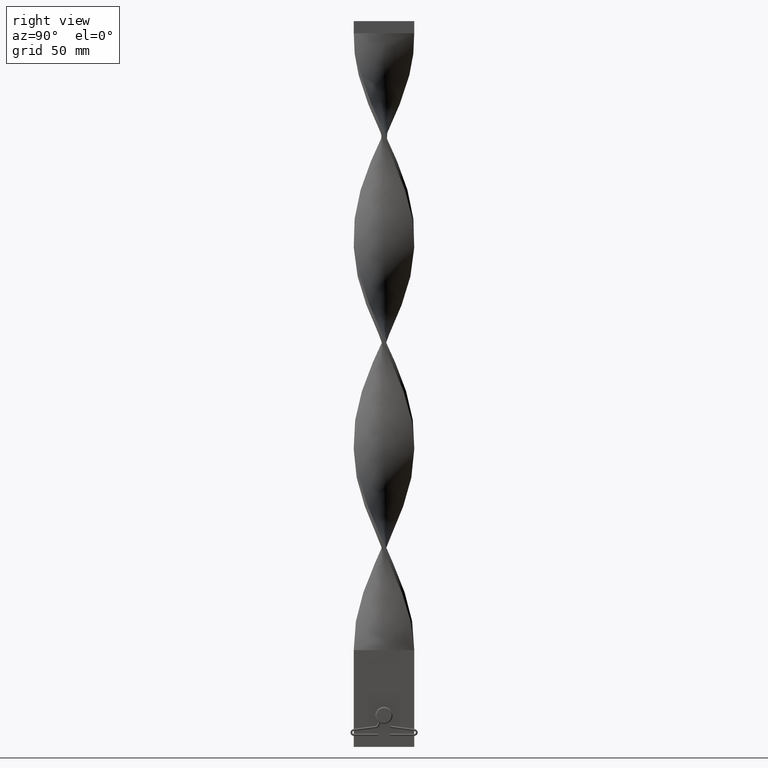
[diagram: clean part render]
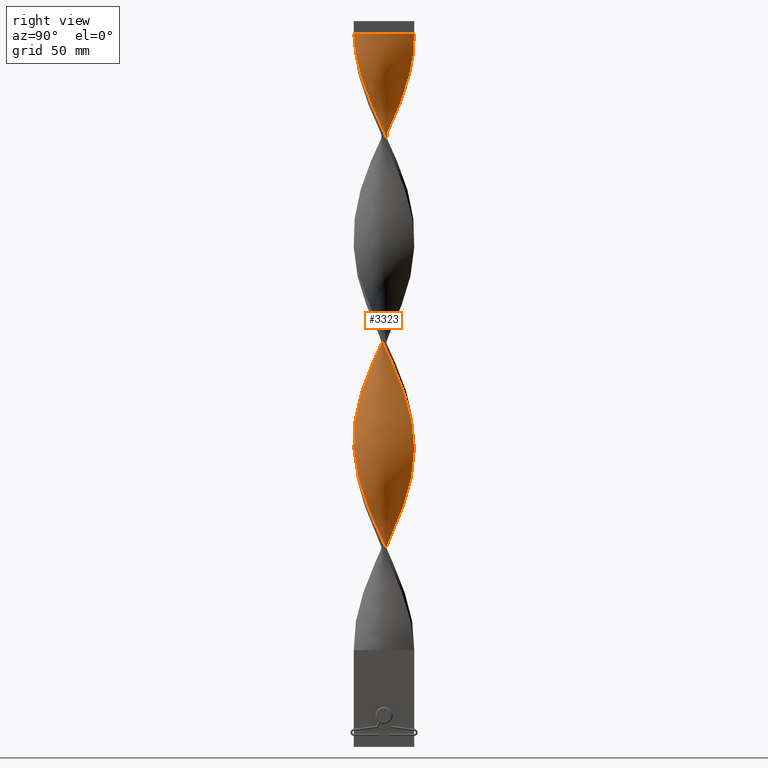
[diagram: same view with one face highlighted and labeled with its STEP entity id]
A machine part, right view. The second image highlights one B-rep face of the part: STEP entity #3323.
In plain terms, the highlighted face is a freeform B-spline surface patch.
Its self-contained STEP definition (entity closure, byte-faithful):
#5 = CARTESIAN_POINT ( 'NONE',  ( -12.22877840865905164, 2.696197068449237566, 86.75000000000000000 ) ) ;
#9 = CARTESIAN_POINT ( 'NONE',  ( 1.214664557556530688, 12.46343010621939307, 44.25000000000000000 ) ) ;
#12 = CARTESIAN_POINT ( 'NONE',  ( 12.01658309743656616, -3.658622801590739826, 173.8750000000000568 ) ) ;
#30 = CARTESIAN_POINT ( 'NONE',  ( -12.55902628011846467, 0.2337713353077323641, 169.6250000000000568 ) ) ;
#34 = CARTESIAN_POINT ( 'NONE',  ( 1.214664557556537350, -12.46343010621939484, 205.7500000000000284 ) ) ;
#51 = CARTESIAN_POINT ( 'NONE',  ( 12.55902628011846467, -0.2337713353077282563, 254.6250000000000568 ) ) ;
#57 = CARTESIAN_POINT ( 'NONE',  ( 0.2337713353077408296, -12.55902628011847000, 207.8750000000000568 ) ) ;
#62 = CARTESIAN_POINT ( 'NONE',  ( -6.740552907874700850, -10.55355136890619860, 142.0000000000000284 ) ) ;
#73 = CARTESIAN_POINT ( 'NONE',  ( -12.11996919947063134, 3.149420042465473024, 176.0000000000000284 ) ) ;
#77 = CARTESIAN_POINT ( 'NONE',  ( -6.343136139885610092, -10.79708867754994195, 222.7500000000000284 ) ) ;
#80 = VECTOR ( 'NONE', #1265, 1000.000000000000000 ) ;
#83 = CARTESIAN_POINT ( 'NONE',  ( -3.149420042465473912, -12.11996919947063134, 133.5000000000000000 ) ) ;
#86 = CARTESIAN_POINT ( 'NONE',  ( -3.658622801590746931, -12.01658309743656261, 46.37500000000000711 ) ) ;
#101 = CARTESIAN_POINT ( 'NONE',  ( -5.006626353603055080, -11.47807442715925852, 137.7500000000000000 ) ) ;
#103 = CARTESIAN_POINT ( 'NONE',  ( -4.576004816908207040, -11.65644370790821149, 218.5000000000000284 ) ) ;
#108 = CARTESIAN_POINT ( 'NONE',  ( -9.671873490467485013, -7.954078399437126912, 150.5000000000000284 ) ) ;
#124 = CARTESIAN_POINT ( 'NONE',  ( -12.36783393232032680, 2.195557779805325183, 173.8750000000000568 ) ) ;
#127 = CARTESIAN_POINT ( 'NONE',  ( -12.55902628011846822, -0.2337713353077330303, 250.3750000000000853 ) ) ;
#131 = CARTESIAN_POINT ( 'NONE',  ( 7.954078399437126912, -9.671873490467485013, 108.0000000000000142 ) ) ;
#133 = CARTESIAN_POINT ( 'NONE',  ( -1.733771335307729533, -12.44097371988153888, 212.1250000000000284 ) ) ;
#154 = CARTESIAN_POINT ( 'NONE',  ( 11.08404438769758293, -5.909970402080495511, 97.37500000000000000 ) ) ;
#156 = CARTESIAN_POINT ( 'NONE',  ( 12.44097371988153888, -1.733771335307732864, 169.6250000000000568 ) ) ;
#181 = CARTESIAN_POINT ( 'NONE',  ( 11.08404438769758293, -5.909970402080495511, 267.3750000000000000 ) ) ;
#183 = CARTESIAN_POINT ( 'NONE',  ( -12.36783393232032680, -2.195557779805337173, 246.1250000000000284 ) ) ;
#201 = CARTESIAN_POINT ( 'NONE',  ( 3.658622801590750928, -12.01658309743655728, 288.6250000000000000 ) ) ;
#203 = CARTESIAN_POINT ( 'NONE',  ( -11.65644370790821327, 4.576004816908206152, 261.0000000000000000 ) ) ;
#221 = CARTESIAN_POINT ( 'NONE',  ( 7.571135413668907965, 10.02305835011481427, 229.1250000000000000 ) ) ;
#223 = CARTESIAN_POINT ( 'NONE',  ( -9.671873490467490342, 7.954078399437124247, 269.5000000000000000 ) ) ;
#248 = CARTESIAN_POINT ( 'NONE',  ( 12.36783393232032680, -2.195557779805333176, 258.8750000000000568 ) ) ;
#267 = CARTESIAN_POINT ( 'NONE',  ( 4.103282305125619978, 11.87210446662093410, 50.62500000000000000 ) ) ;
#272 = CARTESIAN_POINT ( 'NONE',  ( -12.46343010621939307, 1.214664557556528246, 171.7500000000000000 ) ) ;
#289 = CARTESIAN_POINT ( 'NONE',  ( 5.493386832225671590, -11.29630431837985327, 114.3750000000000142 ) ) ;
#293 = CARTESIAN_POINT ( 'NONE',  ( -12.55902628011846822, -0.2337713353077330303, 80.37500000000001421 ) ) ;
#302 = CARTESIAN_POINT ( 'NONE',  ( 5.493386832225671590, -11.29630431837985327, 284.3750000000000568 ) ) ;
#312 = CARTESIAN_POINT ( 'NONE',  ( -1.214664557556535573, 12.46343010621939484, 120.7500000000000000 ) ) ;
#322 = CARTESIAN_POINT ( 'NONE',  ( -12.22877840865905164, 2.696197068449237566, 86.75000000000000000 ) ) ;
#340 = CARTESIAN_POINT ( 'NONE',  ( -6.343136139885610092, -10.79708867754994195, 52.75000000000000711 ) ) ;
#347 = CARTESIAN_POINT ( 'NONE',  ( -6.740552907874707067, 10.55355136890619860, 108.0000000000000142 ) ) ;
#363 = CARTESIAN_POINT ( 'NONE',  ( -9.369164850721755755, -8.308504678941934785, 61.25000000000000000 ) ) ;
#369 = CARTESIAN_POINT ( 'NONE',  ( 12.22877840865905164, -2.696197068449235790, 171.7500000000000000 ) ) ;
#388 = CARTESIAN_POINT ( 'NONE',  ( 10.29787303672001642, 7.192885447545556588, 237.6250000000000284 ) ) ;
#394 = CARTESIAN_POINT ( 'NONE',  ( -12.36783393232032680, -2.195557779805337173, 76.12500000000001421 ) ) ;
#415 = CARTESIAN_POINT ( 'NONE',  ( 12.49999999999999822, 0.7500000000000023315, 252.5000000000000000 ) ) ;
#418 = CARTESIAN_POINT ( 'NONE',  ( -5.909970402080501728, 11.08404438769758293, 280.1250000000000000 ) ) ;
#422 = CARTESIAN_POINT ( 'NONE',  ( 12.46343010621939307, -1.214664557556529800, 86.75000000000000000 ) ) ;
#432 = CARTESIAN_POINT ( 'NONE',  ( 2.696197068449242007, -12.22877840865904631, 120.7500000000000000 ) ) ;
#436 = CARTESIAN_POINT ( 'NONE',  ( -8.715271351328699012, -9.045873944214962492, 229.1250000000000000 ) ) ;
#440 = CARTESIAN_POINT ( 'NONE',  ( 10.79708867754993662, 6.343136139885611868, 69.75000000000000000 ) ) ;
#454 = CARTESIAN_POINT ( 'NONE',  ( -3.658622801590746931, 12.01658309743656083, 203.6250000000000568 ) ) ;
#457 = CARTESIAN_POINT ( 'NONE',  ( -10.55355136890619860, -6.740552907874706179, 235.5000000000000284 ) ) ;
#463 = CARTESIAN_POINT ( 'NONE',  ( 7.192885447545556588, -10.29787303672001997, 110.1250000000000142 ) ) ;
#483 = CARTESIAN_POINT ( 'NONE',  ( -0.2337713353077275902, -12.55902628011846467, 127.1250000000000142 ) ) ;
#485 = CARTESIAN_POINT ( 'NONE',  ( -11.47807442715925852, -5.006626353603062185, 239.7500000000000284 ) ) ;
#490 = CARTESIAN_POINT ( 'NONE',  ( 12.55902628011846467, -0.2337713353077282563, 84.62500000000001421 ) ) ;
#492 = CARTESIAN_POINT ( 'NONE',  ( 11.29630431837985682, -5.493386832225670702, 178.1250000000000284 ) ) ;
#503 = CARTESIAN_POINT ( 'NONE',  ( 1.733771335307733974, -12.44097371988153533, 292.8750000000000568 ) ) ;
#507 = CARTESIAN_POINT ( 'NONE',  ( 0.7499999999999970024, 12.50000000000000178, 295.0000000000000000 ) ) ;
#513 = CARTESIAN_POINT ( 'NONE',  ( 9.045873944214960716, -8.715271351328702565, 186.6250000000000284 ) ) ;
#534 = CARTESIAN_POINT ( 'NONE',  ( 10.55355136890619860, -6.740552907874700850, 269.5000000000000000 ) ) ;
#536 = CARTESIAN_POINT ( 'NONE',  ( 6.740552907874708843, -10.55355136890619860, 193.0000000000000284 ) ) ;
#554 = CARTESIAN_POINT ( 'NONE',  ( 0.7499999999999970024, 12.50000000000000178, 295.0000000000000000 ) ) ;
#557 = CARTESIAN_POINT ( 'NONE',  ( 12.22877840865904808, 2.696197068449241563, 248.2500000000000284 ) ) ;
#559 = CARTESIAN_POINT ( 'NONE',  ( 12.36783393232032857, 2.195557779805333620, 161.1250000000000284 ) ) ;
#576 = CARTESIAN_POINT ( 'NONE',  ( -11.08404438769758649, 5.909970402080490182, 182.3750000000000284 ) ) ;
#578 = CARTESIAN_POINT ( 'NONE',  ( -12.55902628011846822, -0.2337713353077330303, 250.3750000000000568 ) ) ;
#583 = CARTESIAN_POINT ( 'NONE',  ( 12.36783393232032680, -2.195557779805332732, 258.8750000000000000 ) ) ;
#595 = CARTESIAN_POINT ( 'NONE',  ( 8.715271351328700788, -9.045873944214957163, 275.8750000000000000 ) ) ;
#621 = CARTESIAN_POINT ( 'NONE',  ( 6.343136139885612756, -10.79708867754993662, 112.2500000000000142 ) ) ;
#626 = CARTESIAN_POINT ( 'NONE',  ( 12.46343010621939307, -1.214664557556529800, 256.7500000000000568 ) ) ;
#643 = CARTESIAN_POINT ( 'NONE',  ( 12.22877840865904808, 2.696197068449241563, 78.25000000000001421 ) ) ;
#647 = CARTESIAN_POINT ( 'NONE',  ( -11.87210446662093766, -4.103282305125625307, 71.87500000000001421 ) ) ;
#656 = CARTESIAN_POINT ( 'NONE',  ( 4.576004816908210593, -11.65644370790820616, 286.5000000000000568 ) ) ;
#658 = VERTEX_POINT ( 'NONE', #2445 ) ;
#668 = CARTESIAN_POINT ( 'NONE',  ( 5.909970402080495511, 11.08404438769758293, 54.87500000000000000 ) ) ;
#671 = CARTESIAN_POINT ( 'NONE',  ( 9.369164850721755755, 8.308504678941938337, 146.2500000000000284 ) ) ;
#673 = CARTESIAN_POINT ( 'NONE',  ( -1.214664557556535573, 12.46343010621939484, 290.7500000000000000 ) ) ;
#687 = CARTESIAN_POINT ( 'NONE',  ( -4.103282305125625307, 11.87210446662093766, 114.3750000000000142 ) ) ;
#698 = CARTESIAN_POINT ( 'NONE',  ( -12.44097371988153888, 1.733771335307728645, 84.62500000000001421 ) ) ;
#711 = CARTESIAN_POINT ( 'NONE',  ( -12.44097371988153888, 1.733771335307728645, 84.62500000000001421 ) ) ;
#718 = CARTESIAN_POINT ( 'NONE',  ( 12.44097371988153888, -1.733771335307732864, 169.6250000000000568 ) ) ;
#736 = CARTESIAN_POINT ( 'NONE',  ( 0.2337713353077291167, 12.55902628011846467, 212.1250000000000284 ) ) ;
#738 = CARTESIAN_POINT ( 'NONE',  ( 7.954078399437124247, 9.671873490467490342, 142.0000000000000284 ) ) ;
#758 = CARTESIAN_POINT ( 'NONE',  ( 12.22877840865904808, 2.696197068449241563, 248.2500000000000284 ) ) ;
#768 = CARTESIAN_POINT ( 'NONE',  ( 8.715271351328700788, -9.045873944214957163, 105.8750000000000142 ) ) ;
#780 = CARTESIAN_POINT ( 'NONE',  ( -11.47807442715925852, 5.006626353603055080, 180.2500000000000284 ) ) ;
#783 = CARTESIAN_POINT ( 'NONE',  ( -0.7499999999999984457, -12.50000000000000178, 210.0000000000000284 ) ) ;
#787 = CARTESIAN_POINT ( 'NONE',  ( -5.006626353603055080, -11.47807442715925852, 137.7500000000000000 ) ) ;
#789 = CARTESIAN_POINT ( 'NONE',  ( -3.149420042465480574, 12.11996919947063311, 116.5000000000000142 ) ) ;
#801 = CARTESIAN_POINT ( 'NONE',  ( -2.195557779805331844, -12.36783393232032680, 131.3750000000000284 ) ) ;
#804 = CARTESIAN_POINT ( 'NONE',  ( -12.46343010621939662, -1.214664557556535129, 248.2500000000000284 ) ) ;
#809 = CARTESIAN_POINT ( 'NONE',  ( -0.7500000000000015543, 12.49999999999999822, 40.00000000000000000 ) ) ;
#811 = CARTESIAN_POINT ( 'NONE',  ( 8.715271351328697236, 9.045873944214962492, 144.1250000000000000 ) ) ;
#815 = CARTESIAN_POINT ( 'NONE',  ( 0.7499999999999990008, 4.166666666666669627, 295.0000000000000000 ) ) ;
#820 = CARTESIAN_POINT ( 'NONE',  ( -12.22877840865904453, -2.696197068449242895, 163.2500000000000000 ) ) ;
#827 = CARTESIAN_POINT ( 'NONE',  ( -7.192885447545554811, -10.29787303672002707, 224.8750000000000000 ) ) ;
#832 = CARTESIAN_POINT ( 'NONE',  ( 8.308504678941931232, 9.369164850721755755, 61.25000000000000000 ) ) ;
#835 = CARTESIAN_POINT ( 'NONE',  ( 10.55355136890619860, 6.740552907874707067, 150.5000000000000284 ) ) ;
#852 = CARTESIAN_POINT ( 'NONE',  ( -0.2337713353077338907, 12.55902628011846822, 292.8750000000000568 ) ) ;
#858 = CARTESIAN_POINT ( 'NONE',  ( 5.006626353603056856, 11.47807442715925852, 52.75000000000000711 ) ) ;
#860 = CARTESIAN_POINT ( 'NONE',  ( -2.696197068449238010, -12.22877840865905164, 214.2500000000000284 ) ) ;
#882 = CARTESIAN_POINT ( 'NONE',  ( 11.29630431837985505, 5.493386832225670702, 241.8750000000000853 ) ) ;
#884 = CARTESIAN_POINT ( 'NONE',  ( -9.045873944214962492, 8.715271351328697236, 271.6250000000000000 ) ) ;
#906 = CARTESIAN_POINT ( 'NONE',  ( 10.79708867754993662, 6.343136139885611868, 239.7500000000000284 ) ) ;
#908 = CARTESIAN_POINT ( 'NONE',  ( 5.006626353603063961, -11.47807442715925852, 197.2500000000000000 ) ) ;
#930 = CARTESIAN_POINT ( 'NONE',  ( -8.715271351328704341, 9.045873944214951834, 190.8750000000000568 ) ) ;
#932 = CARTESIAN_POINT ( 'NONE',  ( -10.55355136890619860, -6.740552907874706179, 235.5000000000000284 ) ) ;
#954 = CARTESIAN_POINT ( 'NONE',  ( -12.11996919947063134, 3.149420042465473024, 176.0000000000000284 ) ) ;
#979 = CARTESIAN_POINT ( 'NONE',  ( 9.671873490467486789, 7.954078399437126023, 235.5000000000000284 ) ) ;
#981 = CARTESIAN_POINT ( 'NONE',  ( -0.2337713353077338907, 12.55902628011846822, 292.8750000000000568 ) ) ;
#1008 = CARTESIAN_POINT ( 'NONE',  ( -7.571135413668915071, 10.02305835011481605, 105.8750000000000142 ) ) ;
#1031 = CARTESIAN_POINT ( 'NONE',  ( 12.46343010621939307, -1.214664557556529800, 86.75000000000000000 ) ) ;
#1035 = CARTESIAN_POINT ( 'NONE',  ( 0.7499999999999970024, 12.50000000000000178, 125.0000000000000000 ) ) ;
#1051 = CARTESIAN_POINT ( 'NONE',  ( 6.343136139885608316, 10.79708867754994195, 137.7500000000000000 ) ) ;
#1055 = CARTESIAN_POINT ( 'NONE',  ( 12.49999999999999822, 0.7500000000000023315, 82.50000000000000000 ) ) ;
#1058 = CARTESIAN_POINT ( 'NONE',  ( -11.29630431837985860, 5.493386832225668037, 93.12500000000001421 ) ) ;
#1076 = CARTESIAN_POINT ( 'NONE',  ( -12.36783393232032680, -2.195557779805337173, 76.12500000000001421 ) ) ;
#1081 = CARTESIAN_POINT ( 'NONE',  ( 9.369164850721755755, -8.308504678941929456, 103.7500000000000142 ) ) ;
#1087 = CARTESIAN_POINT ( 'NONE',  ( 12.36783393232032857, 2.195557779805334064, 161.1250000000000000 ) ) ;
#1105 = CARTESIAN_POINT ( 'NONE',  ( -5.909970402080502616, 11.08404438769758293, 110.1250000000000142 ) ) ;
#1107 = ORIENTED_EDGE ( 'NONE', *, *, #3732, .F. ) ;
#1114 = CARTESIAN_POINT ( 'NONE',  ( -2.696197068449238010, -12.22877840865905164, 44.25000000000000000 ) ) ;
#1130 = CARTESIAN_POINT ( 'NONE',  ( 12.01658309743655728, 3.658622801590750040, 246.1250000000000284 ) ) ;
#1134 = CARTESIAN_POINT ( 'NONE',  ( -9.369164850721755755, -8.308504678941934785, 231.2500000000000000 ) ) ;
#1148 = EDGE_CURVE ( 'NONE', #658, #4173, #4563, .T. ) ;
#1152 = CARTESIAN_POINT ( 'NONE',  ( -6.740552907874700850, -10.55355136890619860, 142.0000000000000284 ) ) ;
#1156 = CARTESIAN_POINT ( 'NONE',  ( -3.149420042465480574, 12.11996919947063311, 286.5000000000000568 ) ) ;
#1162 = FACE_OUTER_BOUND ( 'NONE', #4230, .T. ) ;
#1176 = CARTESIAN_POINT ( 'NONE',  ( -9.045873944214953610, -8.715271351328704341, 148.3750000000000000 ) ) ;
#1181 = CARTESIAN_POINT ( 'NONE',  ( -7.954078399437126023, -9.671873490467490342, 227.0000000000000000 ) ) ;
#1186 = CARTESIAN_POINT ( 'NONE',  ( 11.87210446662093410, -4.103282305125619089, 93.12500000000001421 ) ) ;
#1196 = CARTESIAN_POINT ( 'NONE',  ( -10.29787303672002174, -7.192885447545552147, 152.6250000000000000 ) ) ;
#1199 = CARTESIAN_POINT ( 'NONE',  ( -10.79708867754994195, 6.343136139885610092, 265.2500000000000000 ) ) ;
#1204 = CARTESIAN_POINT ( 'NONE',  ( -12.22877840865904453, -2.696197068449242895, 163.2500000000000000 ) ) ;
#1219 = CARTESIAN_POINT ( 'NONE',  ( -4.576004816908211481, 11.65644370790820616, 201.5000000000000000 ) ) ;
#1227 = CARTESIAN_POINT ( 'NONE',  ( -2.696197068449238010, -12.22877840865905164, 214.2500000000000284 ) ) ;
#1233 = CARTESIAN_POINT ( 'NONE',  ( 0.2337713353077291167, 12.55902628011846467, 42.12500000000001421 ) ) ;
#1236 = CARTESIAN_POINT ( 'NONE',  ( 11.08404438769758649, 5.909970402080497287, 152.6250000000000000 ) ) ;
#1244 = CARTESIAN_POINT ( 'NONE',  ( 0.7500000000000009992, -4.166666666666666075, 295.0000000000000000 ) ) ;
#1257 = CARTESIAN_POINT ( 'NONE',  ( -1.733771335307740857, 12.44097371988153355, 207.8750000000000568 ) ) ;
#1259 = CARTESIAN_POINT ( 'NONE',  ( 11.65644370790821327, -4.576004816908205264, 176.0000000000000284 ) ) ;
#1265 = DIRECTION ( 'NONE',  ( 1.214306433183764966E-16, -1.000000000000000000, 0.000000000000000000 ) ) ;
#1278 = CARTESIAN_POINT ( 'NONE',  ( -11.87210446662093410, 4.103282305125622642, 178.1250000000000284 ) ) ;
#1280 = CARTESIAN_POINT ( 'NONE',  ( -3.149420042465480574, 12.11996919947063311, 286.5000000000000568 ) ) ;
#1299 = CARTESIAN_POINT ( 'NONE',  ( 6.740552907874700850, 10.55355136890619860, 227.0000000000000000 ) ) ;
#1301 = CARTESIAN_POINT ( 'NONE',  ( 10.79708867754994372, -6.343136139885608316, 180.2500000000000284 ) ) ;
#1325 = CARTESIAN_POINT ( 'NONE',  ( 10.02305835011481427, -7.571135413668906189, 271.6250000000000000 ) ) ;
#1327 = CARTESIAN_POINT ( 'NONE',  ( -12.44097371988153888, 1.733771335307728645, 254.6250000000000568 ) ) ;
#1333 = CARTESIAN_POINT ( 'NONE',  ( -0.7500000000000015543, 12.49999999999999822, 40.00000000000000000 ) ) ;
#1335 = CARTESIAN_POINT ( 'NONE',  ( 7.192885447545556588, -10.29787303672001642, 280.1250000000000000 ) ) ;
#1353 = CARTESIAN_POINT ( 'NONE',  ( 12.49999999999999822, 0.7500000000000023315, 252.5000000000000000 ) ) ;
#1360 = CARTESIAN_POINT ( 'NONE',  ( 2.696197068449242007, -12.22877840865904631, 290.7500000000000000 ) ) ;
#1369 = CARTESIAN_POINT ( 'NONE',  ( 9.671873490467486789, 7.954078399437126023, 65.50000000000000000 ) ) ;
#1376 = CARTESIAN_POINT ( 'NONE',  ( -6.343136139885610092, -10.79708867754994195, 52.75000000000000711 ) ) ;
#1399 = CARTESIAN_POINT ( 'NONE',  ( 3.658622801590750484, -12.01658309743655728, 118.6250000000000284 ) ) ;
#1404 = CARTESIAN_POINT ( 'NONE',  ( -2.195557779805338061, 12.36783393232032680, 118.6250000000000284 ) ) ;
#1421 = CARTESIAN_POINT ( 'NONE',  ( -2.195557779805338061, 12.36783393232032680, 118.6250000000000284 ) ) ;
#1424 = CARTESIAN_POINT ( 'NONE',  ( 12.44097371988153533, 1.733771335307733086, 80.37500000000001421 ) ) ;
#1428 = CARTESIAN_POINT ( 'NONE',  ( -11.47807442715925852, -5.006626353603062185, 69.75000000000000000 ) ) ;
#1442 = CARTESIAN_POINT ( 'NONE',  ( -1.733771335307729533, -12.44097371988153888, 42.12500000000000711 ) ) ;
#1448 = CARTESIAN_POINT ( 'NONE',  ( -5.006626353603062185, 11.47807442715925852, 112.2500000000000142 ) ) ;
#1467 = CARTESIAN_POINT ( 'NONE',  ( -4.576004816908207040, -11.65644370790821149, 48.50000000000000000 ) ) ;
#1473 = CARTESIAN_POINT ( 'NONE',  ( 10.55355136890619860, -6.740552907874700850, 99.50000000000000000 ) ) ;
#1478 = CARTESIAN_POINT ( 'NONE',  ( -3.658622801590746931, -12.01658309743656261, 46.37500000000000711 ) ) ;
#1498 = CARTESIAN_POINT ( 'NONE',  ( -7.954078399437126912, 9.671873490467485013, 193.0000000000000284 ) ) ;
#1516 = CARTESIAN_POINT ( 'NONE',  ( -1.733771335307740857, 12.44097371988153355, 207.8750000000000568 ) ) ;
#1520 = CARTESIAN_POINT ( 'NONE',  ( 5.909970402080497287, -11.08404438769758471, 195.1250000000000568 ) ) ;
#1525 = CARTESIAN_POINT ( 'NONE',  ( 6.740552907874700850, 10.55355136890619860, 57.00000000000000000 ) ) ;
#1541 = CARTESIAN_POINT ( 'NONE',  ( 1.733771335307733974, -12.44097371988153533, 122.8750000000000284 ) ) ;
#1545 = CARTESIAN_POINT ( 'NONE',  ( 9.671873490467492118, -7.954078399437122471, 184.5000000000000284 ) ) ;
#1552 = CARTESIAN_POINT ( 'NONE',  ( -10.79708867754993662, -6.343136139885612756, 154.7500000000000000 ) ) ;
#1554 = CARTESIAN_POINT ( 'NONE',  ( -11.65644370790821327, 4.576004816908206152, 91.00000000000000000 ) ) ;
#1567 = CARTESIAN_POINT ( 'NONE',  ( -8.308504678941929456, -9.369164850721757531, 146.2500000000000284 ) ) ;
#1570 = CARTESIAN_POINT ( 'NONE',  ( -11.08404438769758293, -5.909970402080501728, 237.6250000000000284 ) ) ;
#1574 = CARTESIAN_POINT ( 'NONE',  ( 10.02305835011481427, -7.571135413668906189, 101.6250000000000000 ) ) ;
#1576 = CARTESIAN_POINT ( 'NONE',  ( -8.715271351328699012, -9.045873944214962492, 59.12500000000001421 ) ) ;
#1583 = EDGE_CURVE ( 'NONE', #3509, #658, #1634, .T. ) ;
#1587 = CARTESIAN_POINT ( 'NONE',  ( 1.214664557556530688, 12.46343010621939307, 214.2500000000000284 ) ) ;
#1590 = CARTESIAN_POINT ( 'NONE',  ( -5.006626353603062185, 11.47807442715925852, 282.2500000000000000 ) ) ;
#1594 = CARTESIAN_POINT ( 'NONE',  ( 3.149420042465475689, 12.11996919947062956, 48.50000000000000000 ) ) ;
#1596 = CARTESIAN_POINT ( 'NONE',  ( -11.47807442715925852, -5.006626353603062185, 239.7500000000000284 ) ) ;
#1608 = CARTESIAN_POINT ( 'NONE',  ( 11.08404438769758293, -5.909970402080495511, 267.3750000000000568 ) ) ;
#1625 = CARTESIAN_POINT ( 'NONE',  ( 9.045873944214957163, 8.715271351328699012, 63.37500000000000000 ) ) ;
#1629 = CARTESIAN_POINT ( 'NONE',  ( -11.87210446662093766, -4.103282305125625307, 241.8750000000000568 ) ) ;
#1634 = LINE ( 'NONE', #1333, #80 ) ;
#1648 = CARTESIAN_POINT ( 'NONE',  ( 9.369164850721755755, -8.308504678941929456, 273.7500000000000000 ) ) ;
#1650 = CARTESIAN_POINT ( 'NONE',  ( -7.192885447545553923, -10.29787303672002530, 224.8750000000000284 ) ) ;
#1667 = CARTESIAN_POINT ( 'NONE',  ( -10.55355136890620038, 6.740552907874698185, 184.5000000000000284 ) ) ;
#1669 = CARTESIAN_POINT ( 'NONE',  ( -8.308504678941936561, 9.369164850721755755, 273.7500000000000000 ) ) ;
#1693 = CARTESIAN_POINT ( 'NONE',  ( 0.2337713353077291167, 12.55902628011846467, 212.1250000000000284 ) ) ;
#1695 = CARTESIAN_POINT ( 'NONE',  ( -12.50000000000000178, 0.7499999999999977796, 252.5000000000000000 ) ) ;
#1721 = CARTESIAN_POINT ( 'NONE',  ( 5.909970402080495511, 11.08404438769758293, 224.8750000000000000 ) ) ;
#1728 = CARTESIAN_POINT ( 'NONE',  ( 11.87210446662093410, -4.103282305125619089, 263.1250000000000568 ) ) ;
#1740 = CARTESIAN_POINT ( 'NONE',  ( 10.02305835011481427, -7.571135413668907077, 101.6250000000000000 ) ) ;
#1745 = CARTESIAN_POINT ( 'NONE',  ( -5.493386832225676919, 11.29630431837985149, 199.3750000000000568 ) ) ;
#1765 = CARTESIAN_POINT ( 'NONE',  ( 4.576004816908210593, -11.65644370790820616, 116.5000000000000142 ) ) ;
#1770 = CARTESIAN_POINT ( 'NONE',  ( -10.29787303672002707, 7.192885447545554811, 97.37500000000000000 ) ) ;
#1782 = CARTESIAN_POINT ( 'NONE',  ( 3.658622801590750484, -12.01658309743655728, 288.6250000000000000 ) ) ;
#1790 = CARTESIAN_POINT ( 'NONE',  ( -0.2337713353077338907, 12.55902628011846822, 122.8750000000000284 ) ) ;
#1799 = CARTESIAN_POINT ( 'NONE',  ( -11.65644370790821327, 4.576004816908206152, 91.00000000000000000 ) ) ;
#1821 = CARTESIAN_POINT ( 'NONE',  ( -4.103282305125625307, 11.87210446662093766, 114.3750000000000284 ) ) ;
#1823 = CARTESIAN_POINT ( 'NONE',  ( -2.195557779805338061, 12.36783393232032680, 288.6250000000000000 ) ) ;
#1838 = CARTESIAN_POINT ( 'NONE',  ( -10.55355136890619860, -6.740552907874706179, 65.50000000000000000 ) ) ;
#1843 = CARTESIAN_POINT ( 'NONE',  ( 0.2337713353077291167, 12.55902628011846467, 42.12500000000000711 ) ) ;
#1845 = CARTESIAN_POINT ( 'NONE',  ( 4.576004816908206152, 11.65644370790821327, 133.5000000000000000 ) ) ;
#1864 = CARTESIAN_POINT ( 'NONE',  ( -7.571135413668907077, -10.02305835011481605, 144.1250000000000000 ) ) ;
#1868 = CARTESIAN_POINT ( 'NONE',  ( 11.65644370790821327, -4.576004816908205264, 176.0000000000000284 ) ) ;
#1882 = CARTESIAN_POINT ( 'NONE',  ( 10.79708867754993662, 6.343136139885611868, 239.7500000000000284 ) ) ;
#1885 = CARTESIAN_POINT ( 'NONE',  ( 3.149420042465482794, -12.11996919947063311, 201.5000000000000000 ) ) ;
#1890 = CARTESIAN_POINT ( 'NONE',  ( 12.36783393232032680, -2.195557779805333176, 88.87500000000000000 ) ) ;
#1903 = CARTESIAN_POINT ( 'NONE',  ( -5.909970402080493734, -11.08404438769758293, 139.8750000000000000 ) ) ;
#1906 = CARTESIAN_POINT ( 'NONE',  ( -9.671873490467490342, 7.954078399437124247, 269.5000000000000000 ) ) ;
#1912 = CARTESIAN_POINT ( 'NONE',  ( 11.29630431837985505, 5.493386832225670702, 71.87500000000001421 ) ) ;
#1914 = CARTESIAN_POINT ( 'NONE',  ( -7.571135413668915959, 10.02305835011481605, 105.8750000000000142 ) ) ;
#1924 = ORIENTED_EDGE ( 'NONE', *, *, #1583, .T. ) ;
#1929 = CARTESIAN_POINT ( 'NONE',  ( 3.149420042465475689, 12.11996919947062956, 218.5000000000000284 ) ) ;
#1940 = CARTESIAN_POINT ( 'NONE',  ( 9.369164850721755755, -8.308504678941929456, 103.7500000000000142 ) ) ;
#1942 = CARTESIAN_POINT ( 'NONE',  ( -10.29787303672002530, 7.192885447545553923, 97.37500000000000000 ) ) ;
#1955 = CARTESIAN_POINT ( 'NONE',  ( -10.79708867754993662, -6.343136139885612756, 154.7500000000000000 ) ) ;
#1958 = CARTESIAN_POINT ( 'NONE',  ( 9.045873944214960716, -8.715271351328702565, 186.6250000000000284 ) ) ;
#1962 = CARTESIAN_POINT ( 'NONE',  ( 9.671873490467486789, 7.954078399437126023, 65.50000000000000000 ) ) ;
#1964 = CARTESIAN_POINT ( 'NONE',  ( 3.149420042465482794, -12.11996919947063311, 201.5000000000000000 ) ) ;
#1990 = CARTESIAN_POINT ( 'NONE',  ( 2.195557779805333620, 12.36783393232032502, 46.37500000000000711 ) ) ;
#1992 = CARTESIAN_POINT ( 'NONE',  ( 10.29787303672002707, -7.192885447545548594, 182.3750000000000284 ) ) ;
#1993 = CARTESIAN_POINT ( 'NONE',  ( 0.7500000000000029976, -12.49999999999999822, 295.0000000000000000 ) ) ;
#2018 = CARTESIAN_POINT ( 'NONE',  ( -9.369164850721757531, 8.308504678941927679, 188.7500000000000284 ) ) ;
#2021 = CARTESIAN_POINT ( 'NONE',  ( -7.954078399437126023, -9.671873490467490342, 227.0000000000000000 ) ) ;
#2042 = CARTESIAN_POINT ( 'NONE',  ( 7.192885447545556588, -10.29787303672001997, 280.1250000000000000 ) ) ;
#2044 = CARTESIAN_POINT ( 'NONE',  ( -12.22877840865905164, 2.696197068449237566, 256.7500000000000568 ) ) ;
#2060 = CARTESIAN_POINT ( 'NONE',  ( -3.658622801590746931, 12.01658309743656083, 203.6250000000000568 ) ) ;
#2062 = CARTESIAN_POINT ( 'NONE',  ( -11.29630431837985860, 5.493386832225668037, 263.1250000000000568 ) ) ;
#2068 = CARTESIAN_POINT ( 'NONE',  ( 10.02305835011481427, -7.571135413668907077, 271.6250000000000000 ) ) ;
#2085 = CARTESIAN_POINT ( 'NONE',  ( 2.696197068449242007, -12.22877840865904631, 290.7500000000000000 ) ) ;
#2113 = CARTESIAN_POINT ( 'NONE',  ( -12.36783393232032680, 2.195557779805325627, 173.8750000000000568 ) ) ;
#2122 = CARTESIAN_POINT ( 'NONE',  ( 11.47807442715925852, -5.006626353603056856, 265.2500000000000000 ) ) ;
#2133 = CARTESIAN_POINT ( 'NONE',  ( 12.55902628011846467, -0.2337713353077282563, 84.62500000000001421 ) ) ;
#2137 = CARTESIAN_POINT ( 'NONE',  ( -10.02305835011481605, -7.571135413668912406, 63.37500000000000000 ) ) ;
#2147 = CARTESIAN_POINT ( 'NONE',  ( 10.55355136890619860, -6.740552907874700850, 269.5000000000000000 ) ) ;
#2156 = CARTESIAN_POINT ( 'NONE',  ( 10.29787303672001642, 7.192885447545556588, 67.62500000000001421 ) ) ;
#2161 = CARTESIAN_POINT ( 'NONE',  ( 12.46343010621939484, 1.214664557556536462, 163.2500000000000000 ) ) ;
#2189 = CARTESIAN_POINT ( 'NONE',  ( -9.369164850721755755, -8.308504678941934785, 61.25000000000000000 ) ) ;
#2206 = CARTESIAN_POINT ( 'NONE',  ( -11.29630431837985860, 5.493386832225668037, 93.12500000000001421 ) ) ;
#2212 = CARTESIAN_POINT ( 'NONE',  ( 7.192885447545553035, 10.29787303672002707, 139.8749999999999716 ) ) ;
#2227 = CARTESIAN_POINT ( 'NONE',  ( 7.571135413668908853, 10.02305835011481427, 229.1250000000000284 ) ) ;
#2231 = CARTESIAN_POINT ( 'NONE',  ( 11.47807442715925852, 5.006626353603063073, 154.7500000000000000 ) ) ;
#2254 = CARTESIAN_POINT ( 'NONE',  ( 12.44097371988153533, 1.733771335307733086, 250.3750000000000568 ) ) ;
#2260 = CARTESIAN_POINT ( 'NONE',  ( -8.308504678941936561, 9.369164850721755755, 273.7500000000000000 ) ) ;
#2265 = CARTESIAN_POINT ( 'NONE',  ( 7.571135413668907965, 10.02305835011481427, 59.12500000000001421 ) ) ;
#2276 = CARTESIAN_POINT ( 'NONE',  ( -9.369164850721757531, 8.308504678941927679, 188.7500000000000284 ) ) ;
#2279 = CARTESIAN_POINT ( 'NONE',  ( -1.733771335307729533, -12.44097371988153888, 212.1250000000000284 ) ) ;
#2284 = CARTESIAN_POINT ( 'NONE',  ( -8.308504678941929456, -9.369164850721757531, 146.2500000000000284 ) ) ;
#2285 = CARTESIAN_POINT ( 'NONE',  ( 0.7499999999999970024, 12.50000000000000178, 125.0000000000000000 ) ) ;
#2296 = CARTESIAN_POINT ( 'NONE',  ( -12.49999999999999822, -0.7500000000000037748, 167.5000000000000000 ) ) ;
#2302 = CARTESIAN_POINT ( 'NONE',  ( 10.29787303672001997, 7.192885447545556588, 67.62500000000002842 ) ) ;
#2304 = CARTESIAN_POINT ( 'NONE',  ( -11.08404438769758293, -5.909970402080502616, 67.62500000000001421 ) ) ;
#2317 = CARTESIAN_POINT ( 'NONE',  ( -5.493386832225676919, 11.29630431837985149, 199.3750000000000568 ) ) ;
#2325 = CARTESIAN_POINT ( 'NONE',  ( -10.02305835011481605, -7.571135413668912406, 233.3750000000000000 ) ) ;
#2332 = CARTESIAN_POINT ( 'NONE',  ( 5.909970402080495511, 11.08404438769758293, 54.87500000000000000 ) ) ;
#2334 = CARTESIAN_POINT ( 'NONE',  ( -5.909970402080502616, 11.08404438769758293, 280.1250000000000000 ) ) ;
#2349 = CARTESIAN_POINT ( 'NONE',  ( 12.46343010621939307, -1.214664557556529800, 256.7500000000000568 ) ) ;
#2354 = CARTESIAN_POINT ( 'NONE',  ( -1.214664557556535573, 12.46343010621939484, 290.7500000000000000 ) ) ;
#2358 = CARTESIAN_POINT ( 'NONE',  ( 12.01658309743655728, 3.658622801590750484, 76.12500000000001421 ) ) ;
#2360 = CARTESIAN_POINT ( 'NONE',  ( 12.22877840865905164, -2.696197068449235790, 171.7500000000000000 ) ) ;
#2373 = CARTESIAN_POINT ( 'NONE',  ( 2.195557779805333620, 12.36783393232032502, 216.3750000000000284 ) ) ;
#2375 = CARTESIAN_POINT ( 'NONE',  ( -6.343136139885610092, -10.79708867754994195, 222.7500000000000284 ) ) ;
#2404 = CARTESIAN_POINT ( 'NONE',  ( 12.01658309743655728, 3.658622801590750484, 246.1250000000000568 ) ) ;
#2407 = CARTESIAN_POINT ( 'NONE',  ( 0.2337713353077408296, -12.55902628011847000, 207.8750000000000568 ) ) ;
#2427 = CARTESIAN_POINT ( 'NONE',  ( -7.192885447545553923, 10.29787303672002174, 195.1250000000000568 ) ) ;
#2429 = CARTESIAN_POINT ( 'NONE',  ( -12.46343010621939662, -1.214664557556535129, 248.2500000000000284 ) ) ;
#2445 = CARTESIAN_POINT ( 'NONE',  ( -0.7499999999999984457, -12.50000000000000178, 40.00000000000000000 ) ) ;
#2446 = CARTESIAN_POINT ( 'NONE',  ( 4.103282305125619978, 11.87210446662093410, 220.6250000000000000 ) ) ;
#2473 = CARTESIAN_POINT ( 'NONE',  ( 4.576004816908210593, -11.65644370790820616, 286.5000000000000568 ) ) ;
#2495 = CARTESIAN_POINT ( 'NONE',  ( 12.01658309743655728, 3.658622801590750040, 76.12500000000001421 ) ) ;
#2500 = CARTESIAN_POINT ( 'NONE',  ( -7.192885447545554811, -10.29787303672002707, 54.87500000000000000 ) ) ;
#2519 = CARTESIAN_POINT ( 'NONE',  ( -8.715271351328699012, -9.045873944214962492, 59.12500000000001421 ) ) ;
#2540 = EDGE_CURVE ( 'NONE', #2954, #4173, #3172, .T. ) ;
#2543 = CARTESIAN_POINT ( 'NONE',  ( -9.045873944214962492, 8.715271351328697236, 101.6250000000000000 ) ) ;
#2561 = CARTESIAN_POINT ( 'NONE',  ( -12.50000000000000178, 0.7499999999999977796, 82.50000000000000000 ) ) ;
#2566 = CARTESIAN_POINT ( 'NONE',  ( 7.954078399437126912, -9.671873490467485013, 108.0000000000000142 ) ) ;
#2570 = CARTESIAN_POINT ( 'NONE',  ( 12.55902628011846822, 0.2337713353077401635, 165.3750000000000568 ) ) ;
#2583 = CARTESIAN_POINT ( 'NONE',  ( -5.006626353603062185, 11.47807442715925852, 112.2500000000000142 ) ) ;
#2588 = CARTESIAN_POINT ( 'NONE',  ( 11.65644370790820616, 4.576004816908209705, 74.00000000000001421 ) ) ;
#2591 = CARTESIAN_POINT ( 'NONE',  ( 2.696197068449236234, 12.22877840865905164, 129.2500000000000000 ) ) ;
#2610 = CARTESIAN_POINT ( 'NONE',  ( -1.214664557556528912, -12.46343010621939307, 129.2500000000000000 ) ) ;
#2618 = CARTESIAN_POINT ( 'NONE',  ( -1.214664557556528912, -12.46343010621939307, 129.2500000000000000 ) ) ;
#2632 = CARTESIAN_POINT ( 'NONE',  ( -10.02305835011481250, 7.571135413668911518, 186.6250000000000284 ) ) ;
#2636 = CARTESIAN_POINT ( 'NONE',  ( 7.571135413668918623, -10.02305835011480717, 190.8750000000000568 ) ) ;
#2641 = CARTESIAN_POINT ( 'NONE',  ( -7.571135413668906189, -10.02305835011481605, 144.1249999999999716 ) ) ;
#2652 = CARTESIAN_POINT ( 'NONE',  ( -11.08404438769758649, 5.909970402080490182, 182.3750000000000284 ) ) ;
#2656 = CARTESIAN_POINT ( 'NONE',  ( 6.740552907874708843, -10.55355136890619860, 193.0000000000000284 ) ) ;
#2662 = CARTESIAN_POINT ( 'NONE',  ( 3.658622801590750928, -12.01658309743655728, 118.6250000000000284 ) ) ;
#2664 = CARTESIAN_POINT ( 'NONE',  ( -2.696197068449238010, -12.22877840865905164, 44.25000000000000000 ) ) ;
#2675 = CARTESIAN_POINT ( 'NONE',  ( 5.909970402080495511, 11.08404438769758293, 224.8750000000000284 ) ) ;
#2678 = CARTESIAN_POINT ( 'NONE',  ( -10.29787303672002707, 7.192885447545554811, 267.3750000000000000 ) ) ;
#2685 = CARTESIAN_POINT ( 'NONE',  ( 9.369164850721755755, 8.308504678941938337, 146.2500000000000284 ) ) ;
#2702 = CARTESIAN_POINT ( 'NONE',  ( -11.87210446662093766, -4.103282305125625307, 241.8750000000000853 ) ) ;
#2707 = CARTESIAN_POINT ( 'NONE',  ( 1.214664557556530688, 12.46343010621939307, 44.25000000000000000 ) ) ;
#2709 = CARTESIAN_POINT ( 'NONE',  ( 12.11996919947063311, 3.149420042465481462, 159.0000000000000000 ) ) ;
#2728 = CARTESIAN_POINT ( 'NONE',  ( 5.006626353603056856, 11.47807442715925852, 222.7500000000000284 ) ) ;
#2730 = CARTESIAN_POINT ( 'NONE',  ( -10.29787303672002530, 7.192885447545553923, 267.3750000000000568 ) ) ;
#2737 = CARTESIAN_POINT ( 'NONE',  ( 0.7500000000000029976, -12.49999999999999822, 295.0000000000000000 ) ) ;
#2748 = CARTESIAN_POINT ( 'NONE',  ( -12.49999999999999822, -0.7500000000000037748, 167.5000000000000000 ) ) ;
#2750 = CARTESIAN_POINT ( 'NONE',  ( 12.46343010621939484, 1.214664557556536462, 163.2500000000000000 ) ) ;
#2770 = CARTESIAN_POINT ( 'NONE',  ( -1.733771335307729533, -12.44097371988153888, 42.12500000000001421 ) ) ;
#2772 = CARTESIAN_POINT ( 'NONE',  ( 2.195557779805334508, -12.36783393232032857, 203.6250000000000568 ) ) ;
#2794 = CARTESIAN_POINT ( 'NONE',  ( 7.954078399437126912, -9.671873490467485013, 278.0000000000000000 ) ) ;
#2796 = CARTESIAN_POINT ( 'NONE',  ( -6.740552907874707067, 10.55355136890619860, 278.0000000000000000 ) ) ;
#2813 = CARTESIAN_POINT ( 'NONE',  ( 12.55902628011846467, -0.2337713353077282563, 254.6250000000000568 ) ) ;
#2823 = CARTESIAN_POINT ( 'NONE',  ( 0.7500000000000029976, -12.49999999999999822, 295.0000000000000000 ) ) ;
#2835 = CARTESIAN_POINT ( 'NONE',  ( 8.308504678941931232, 9.369164850721755755, 61.25000000000000000 ) ) ;
#2841 = CARTESIAN_POINT ( 'NONE',  ( -4.576004816908207040, -11.65644370790821149, 48.50000000000000000 ) ) ;
#2860 = CARTESIAN_POINT ( 'NONE',  ( -0.7500000000000015543, 12.49999999999999822, 40.00000000000000000 ) ) ;
#2864 = CARTESIAN_POINT ( 'NONE',  ( -1.214664557556535573, 12.46343010621939484, 120.7500000000000000 ) ) ;
#2879 =( BOUNDED_SURFACE ( )  B_SPLINE_SURFACE ( 1, 2, ( 
 ( #809, #1233, #2707, #1990, #1594, #3064, #858, #2332, #1525, #2265, #832, #1625, #1962, #2302, #440, #1912, #4553, #2358, #2989, #3787, #4075, #490, #422, #1890, #3425, #1186, #3093, #154, #4166, #1574, #1940, #768, #131, #463, #4454, #4099, #3352, #2662, #3449, #4117, #3809, #3758, #2618, #3375, #83, #3406, #787, #3716, #62, #2641, #2284, #3735, #108, #3040, #1552, #3015, #4475, #4496, #1204, #4647, #2748, #4262, #272, #2113, #954, #1278, #4573, #576, #1667, #3516, #2018, #930, #4241, #2427, #3566, #1745, #3210, #2060, #3880, #1257, #3857, #1693, #4189, #2373, #3473, #2446, #2728, #1721, #1299, #221, #3159, #4210, #979, #3135, #906, #882, #3830, #2404, #557, #4623, #1353, #2813, #626, #248, #3188, #4285, #3901, #181, #534, #1325, #1648, #595, #2794, #2042, #3493, #3114, #2473, #201, #2085, #4596, #3545 ),
 ( #3928, #2770, #1114, #1478, #2841, #2891, #1376, #2500, #4724, #2519, #2189, #2137, #3614, #3954, #1428, #647, #3284, #394, #3591, #293, #4003, #698, #322, #4703, #1799, #1058, #3641, #1770, #3261, #2543, #2942, #1008, #347, #4409, #1448, #1821, #3236, #1404, #2864, #4334, #1035, #4311, #2591, #3304, #1845, #4050, #4747, #2212, #738, #3978, #671, #2913, #4355, #3687, #2231, #3661, #4384, #1087, #2161, #2570, #4029, #718, #369, #12, #1868, #4674, #3369, #3401, #1545, #1958, #4094, #2636, #2656, #1520, #4516, #3421, #1885, #4131, #34, #57, #783, #2279, #1227, #3347, #103, #3730, #77, #827, #1181, #436, #1134, #2325, #457, #1570, #485, #2702, #4470, #3009, #804, #127, #3330, #3036, #2984, #4491, #3805, #3711, #1199, #2678, #1906, #4114, #2260, #4447, #3781, #418, #1590, #3058, #1156, #4160, #2354, #852, #507 ) ),
 .UNSPECIFIED., .F., .F., .F. ) 
 B_SPLINE_SURFACE_WITH_KNOTS ( ( 2, 2 ),
 ( 3, 2, 2, 2, 2, 2, 2, 2, 2, 2, 2, 2, 2, 2, 2, 2, 2, 2, 2, 2, 2, 2, 2, 2, 2, 2, 2, 2, 2, 2, 2, 2, 2, 2, 2, 2, 2, 2, 2, 2, 2, 2, 2, 2, 2, 2, 2, 2, 2, 2, 2, 2, 2, 2, 2, 2, 2, 2, 2, 2, 3 ),
 ( 0.000000000000000000, 1.000000000000000000 ),
 ( 0.000000000000000000, 0.01250000000000000069, 0.02500000000000000139, 0.03749999999999999861, 0.05000000000000000278, 0.06250000000000000000, 0.07499999999999999722, 0.08749999999999999445, 0.1000000000000000056, 0.1125000000000000028, 0.1250000000000000000, 0.1375000000000000111, 0.1499999999999999944, 0.1625000000000000056, 0.1749999999999999889, 0.1875000000000000000, 0.2000000000000000111, 0.2124999999999999944, 0.2250000000000000056, 0.2374999999999999889, 0.2500000000000000000, 0.2625000000000000111, 0.2750000000000000222, 0.2874999999999999778, 0.2999999999999999889, 0.3125000000000000000, 0.3250000000000000111, 0.3375000000000000222, 0.3499999999999999778, 0.3624999999999999889, 0.3750000000000000000, 0.3875000000000000111, 0.4000000000000000222, 0.4124999999999999778, 0.4249999999999999889, 0.4375000000000000000, 0.4500000000000000111, 0.4625000000000000222, 0.4749999999999999778, 0.4874999999999999889, 0.5000000000000000000, 0.5124999999999999556, 0.5250000000000000222, 0.5374999999999999778, 0.5500000000000000444, 0.5625000000000000000, 0.5749999999999999556, 0.5875000000000000222, 0.5999999999999999778, 0.6125000000000000444, 0.6250000000000000000, 0.6374999999999999556, 0.6500000000000000222, 0.6624999999999999778, 0.6750000000000000444, 0.6875000000000000000, 0.6999999999999999556, 0.7125000000000000222, 0.7249999999999999778, 0.7375000000000000444, 0.7500000000000000000 ),
 .UNSPECIFIED. ) 
 GEOMETRIC_REPRESENTATION_ITEM ( )  RATIONAL_B_SPLINE_SURFACE ( (
 ( 1.000000000000000000, 0.9969173337331279638, 1.000000000000000000, 0.9969173337331279638, 1.000000000000000000, 0.9969173337331279638, 1.000000000000000000, 0.9969173337331279638, 1.000000000000000000, 0.9969173337331279638, 1.000000000000000000, 0.9969173337331279638, 1.000000000000000000, 0.9969173337331279638, 1.000000000000000000, 0.9969173337331279638, 1.000000000000000000, 0.9969173337331279638, 1.000000000000000000, 0.9969173337331279638, 1.000000000000000000, 0.9969173337331279638, 1.000000000000000000, 0.9969173337331279638, 1.000000000000000000, 0.9969173337331279638, 1.000000000000000000, 0.9969173337331279638, 1.000000000000000000, 0.9969173337331279638, 1.000000000000000000, 0.9969173337331279638, 1.000000000000000000, 0.9969173337331279638, 1.000000000000000000, 0.9969173337331279638, 1.000000000000000000, 0.9969173337331279638, 1.000000000000000000, 0.9969173337331279638, 1.000000000000000000, 0.9969173337331279638, 1.000000000000000000, 0.9969173337331279638, 1.000000000000000000, 0.9969173337331279638, 1.000000000000000000, 0.9969173337331279638, 1.000000000000000000, 0.9969173337331279638, 1.000000000000000000, 0.9969173337331279638, 1.000000000000000000, 0.9969173337331279638, 1.000000000000000000, 0.9969173337331279638, 1.000000000000000000, 0.9969173337331279638, 1.000000000000000000, 0.9969173337331279638, 1.000000000000000000, 0.9969173337331279638, 1.000000000000000000, 0.9969173337331279638, 1.000000000000000000, 0.9969173337331279638, 1.000000000000000000, 0.9969173337331279638, 1.000000000000000000, 0.9969173337331279638, 1.000000000000000000, 0.9969173337331279638, 1.000000000000000000, 0.9969173337331279638, 1.000000000000000000, 0.9969173337331279638, 1.000000000000000000, 0.9969173337331279638, 1.000000000000000000, 0.9969173337331279638, 1.000000000000000000, 0.9969173337331279638, 1.000000000000000000, 0.9969173337331279638, 1.000000000000000000, 0.9969173337331279638, 1.000000000000000000, 0.9969173337331279638, 1.000000000000000000, 0.9969173337331279638, 1.000000000000000000, 0.9969173337331279638, 1.000000000000000000, 0.9969173337331279638, 1.000000000000000000, 0.9969173337331279638, 1.000000000000000000, 0.9969173337331279638, 1.000000000000000000, 0.9969173337331279638, 1.000000000000000000, 0.9969173337331279638, 1.000000000000000000, 0.9969173337331279638, 1.000000000000000000, 0.9969173337331279638, 1.000000000000000000, 0.9969173337331279638, 1.000000000000000000, 0.9969173337331279638, 1.000000000000000000, 0.9969173337331279638, 1.000000000000000000, 0.9969173337331279638, 1.000000000000000000, 0.9969173337331279638, 1.000000000000000000, 0.9969173337331279638, 1.000000000000000000, 0.9969173337331279638, 1.000000000000000000),
 ( 1.000000000000000000, 0.9969173337331279638, 1.000000000000000000, 0.9969173337331279638, 1.000000000000000000, 0.9969173337331279638, 1.000000000000000000, 0.9969173337331279638, 1.000000000000000000, 0.9969173337331279638, 1.000000000000000000, 0.9969173337331279638, 1.000000000000000000, 0.9969173337331279638, 1.000000000000000000, 0.9969173337331279638, 1.000000000000000000, 0.9969173337331279638, 1.000000000000000000, 0.9969173337331279638, 1.000000000000000000, 0.9969173337331279638, 1.000000000000000000, 0.9969173337331279638, 1.000000000000000000, 0.9969173337331279638, 1.000000000000000000, 0.9969173337331279638, 1.000000000000000000, 0.9969173337331279638, 1.000000000000000000, 0.9969173337331279638, 1.000000000000000000, 0.9969173337331279638, 1.000000000000000000, 0.9969173337331279638, 1.000000000000000000, 0.9969173337331279638, 1.000000000000000000, 0.9969173337331279638, 1.000000000000000000, 0.9969173337331279638, 1.000000000000000000, 0.9969173337331279638, 1.000000000000000000, 0.9969173337331279638, 1.000000000000000000, 0.9969173337331279638, 1.000000000000000000, 0.9969173337331279638, 1.000000000000000000, 0.9969173337331279638, 1.000000000000000000, 0.9969173337331279638, 1.000000000000000000, 0.9969173337331279638, 1.000000000000000000, 0.9969173337331279638, 1.000000000000000000, 0.9969173337331279638, 1.000000000000000000, 0.9969173337331279638, 1.000000000000000000, 0.9969173337331279638, 1.000000000000000000, 0.9969173337331279638, 1.000000000000000000, 0.9969173337331279638, 1.000000000000000000, 0.9969173337331279638, 1.000000000000000000, 0.9969173337331279638, 1.000000000000000000, 0.9969173337331279638, 1.000000000000000000, 0.9969173337331279638, 1.000000000000000000, 0.9969173337331279638, 1.000000000000000000, 0.9969173337331279638, 1.000000000000000000, 0.9969173337331279638, 1.000000000000000000, 0.9969173337331279638, 1.000000000000000000, 0.9969173337331279638, 1.000000000000000000, 0.9969173337331279638, 1.000000000000000000, 0.9969173337331279638, 1.000000000000000000, 0.9969173337331279638, 1.000000000000000000, 0.9969173337331279638, 1.000000000000000000, 0.9969173337331279638, 1.000000000000000000, 0.9969173337331279638, 1.000000000000000000, 0.9969173337331279638, 1.000000000000000000, 0.9969173337331279638, 1.000000000000000000, 0.9969173337331279638, 1.000000000000000000, 0.9969173337331279638, 1.000000000000000000, 0.9969173337331279638, 1.000000000000000000, 0.9969173337331279638, 1.000000000000000000, 0.9969173337331279638, 1.000000000000000000, 0.9969173337331279638, 1.000000000000000000, 0.9969173337331279638, 1.000000000000000000, 0.9969173337331279638, 1.000000000000000000, 0.9969173337331279638, 1.000000000000000000) ) ) 
 REPRESENTATION_ITEM ( '' )  SURFACE ( )  );
#2884 = CARTESIAN_POINT ( 'NONE',  ( 7.192885447545552147, 10.29787303672002530, 139.8750000000000000 ) ) ;
#2888 = CARTESIAN_POINT ( 'NONE',  ( 7.571135413668908853, 10.02305835011481427, 59.12500000000001421 ) ) ;
#2891 = CARTESIAN_POINT ( 'NONE',  ( -5.493386832225668037, -11.29630431837985860, 50.62500000000000711 ) ) ;
#2908 = CARTESIAN_POINT ( 'NONE',  ( -11.87210446662093766, -4.103282305125625307, 71.87500000000001421 ) ) ;
#2913 = CARTESIAN_POINT ( 'NONE',  ( 10.02305835011481072, 7.571135413668918623, 148.3750000000000000 ) ) ;
#2932 = CARTESIAN_POINT ( 'NONE',  ( -12.11996919947063134, -3.149420042465480130, 74.00000000000001421 ) ) ;
#2938 = CARTESIAN_POINT ( 'NONE',  ( 8.715271351328700788, -9.045873944214957163, 105.8750000000000142 ) ) ;
#2942 = CARTESIAN_POINT ( 'NONE',  ( -8.308504678941936561, 9.369164850721755755, 103.7500000000000142 ) ) ;
#2954 = VERTEX_POINT ( 'NONE', #1993 ) ;
#2960 = CARTESIAN_POINT ( 'NONE',  ( 11.29630431837985505, 5.493386832225670702, 241.8750000000000568 ) ) ;
#2981 = CARTESIAN_POINT ( 'NONE',  ( -0.7500000000000015543, 12.49999999999999822, 210.0000000000000284 ) ) ;
#2984 = CARTESIAN_POINT ( 'NONE',  ( -12.22877840865905164, 2.696197068449237566, 256.7500000000000568 ) ) ;
#2989 = CARTESIAN_POINT ( 'NONE',  ( 12.22877840865904808, 2.696197068449241563, 78.25000000000001421 ) ) ;
#3004 = CARTESIAN_POINT ( 'NONE',  ( -12.01658309743656083, -3.658622801590746043, 161.1250000000000284 ) ) ;
#3009 = CARTESIAN_POINT ( 'NONE',  ( -12.36783393232032680, -2.195557779805337173, 246.1250000000000568 ) ) ;
#3015 = CARTESIAN_POINT ( 'NONE',  ( -11.29630431837985149, -5.493386832225676919, 156.8750000000000000 ) ) ;
#3017 = CARTESIAN_POINT ( 'NONE',  ( 4.576004816908206152, 11.65644370790821327, 133.5000000000000000 ) ) ;
#3029 = CARTESIAN_POINT ( 'NONE',  ( -12.46343010621939307, 1.214664557556528246, 171.7500000000000000 ) ) ;
#3036 = CARTESIAN_POINT ( 'NONE',  ( -12.44097371988153888, 1.733771335307728645, 254.6250000000000568 ) ) ;
#3040 = CARTESIAN_POINT ( 'NONE',  ( -10.29787303672002352, -7.192885447545553035, 152.6250000000000000 ) ) ;
#3042 = CARTESIAN_POINT ( 'NONE',  ( -12.46343010621939662, -1.214664557556535129, 78.25000000000001421 ) ) ;
#3049 = CARTESIAN_POINT ( 'NONE',  ( 0.7499999999999970024, 12.50000000000000178, 295.0000000000000000 ) ) ;
#3054 = CARTESIAN_POINT ( 'NONE',  ( 6.740552907874700850, 10.55355136890619860, 227.0000000000000000 ) ) ;
#3058 = CARTESIAN_POINT ( 'NONE',  ( -4.103282305125625307, 11.87210446662093766, 284.3750000000000568 ) ) ;
#3064 = CARTESIAN_POINT ( 'NONE',  ( 4.103282305125619978, 11.87210446662093410, 50.62500000000000711 ) ) ;
#3066 = CARTESIAN_POINT ( 'NONE',  ( -12.01658309743656439, 3.658622801590746931, 258.8750000000000000 ) ) ;
#3080 = CARTESIAN_POINT ( 'NONE',  ( 9.369164850721755755, -8.308504678941929456, 273.7500000000000000 ) ) ;
#3093 = CARTESIAN_POINT ( 'NONE',  ( 11.47807442715925852, -5.006626353603056856, 95.25000000000000000 ) ) ;
#3095 = CARTESIAN_POINT ( 'NONE',  ( -12.11996919947063134, -3.149420042465480130, 244.0000000000000284 ) ) ;
#3114 = CARTESIAN_POINT ( 'NONE',  ( 5.493386832225671590, -11.29630431837985327, 284.3750000000000568 ) ) ;
#3116 = CARTESIAN_POINT ( 'NONE',  ( -5.006626353603062185, 11.47807442715925852, 282.2500000000000000 ) ) ;
#3135 = CARTESIAN_POINT ( 'NONE',  ( 10.29787303672001997, 7.192885447545556588, 237.6250000000000284 ) ) ;
#3137 = CARTESIAN_POINT ( 'NONE',  ( 11.87210446662093410, 4.103282305125631524, 156.8750000000000284 ) ) ;
#3159 = CARTESIAN_POINT ( 'NONE',  ( 8.308504678941931232, 9.369164850721755755, 231.2500000000000000 ) ) ;
#3162 = CARTESIAN_POINT ( 'NONE',  ( -7.571135413668915959, 10.02305835011481605, 275.8750000000000568 ) ) ;
#3166 = ORIENTED_EDGE ( 'NONE', *, *, #1148, .T. ) ;
#3172 = B_SPLINE_CURVE_WITH_KNOTS ( 'NONE', 3,
 ( #2737, #1244, #815, #3049 ),
 .UNSPECIFIED., .F., .F.,
 ( 4, 4 ),
 ( 0.000000000000000000, 1.000000000000000000 ),
 .UNSPECIFIED. ) ;
#3188 = CARTESIAN_POINT ( 'NONE',  ( 12.11996919947063134, -3.149420042465474801, 261.0000000000000000 ) ) ;
#3210 = CARTESIAN_POINT ( 'NONE',  ( -4.576004816908211481, 11.65644370790820616, 201.5000000000000000 ) ) ;
#3236 = CARTESIAN_POINT ( 'NONE',  ( -3.149420042465480574, 12.11996919947063311, 116.5000000000000142 ) ) ;
#3255 = CARTESIAN_POINT ( 'NONE',  ( 3.658622801590746043, 12.01658309743656439, 131.3750000000000284 ) ) ;
#3261 = CARTESIAN_POINT ( 'NONE',  ( -9.671873490467490342, 7.954078399437124247, 99.50000000000000000 ) ) ;
#3284 = CARTESIAN_POINT ( 'NONE',  ( -12.11996919947063134, -3.149420042465480130, 74.00000000000001421 ) ) ;
#3298 = CARTESIAN_POINT ( 'NONE',  ( -10.79708867754994195, 6.343136139885610092, 95.25000000000000000 ) ) ;
#3304 = CARTESIAN_POINT ( 'NONE',  ( 3.658622801590746043, 12.01658309743656439, 131.3750000000000000 ) ) ;
#3323 = ADVANCED_FACE ( 'NONE', ( #1162 ), #2879, .T. ) ;
#3327 = CARTESIAN_POINT ( 'NONE',  ( 0.7500000000000029976, -12.49999999999999822, 125.0000000000000000 ) ) ;
#3330 = CARTESIAN_POINT ( 'NONE',  ( -12.50000000000000178, 0.7499999999999977796, 252.5000000000000000 ) ) ;
#3344 = CARTESIAN_POINT ( 'NONE',  ( 2.195557779805333176, 12.36783393232032502, 216.3750000000000284 ) ) ;
#3347 = CARTESIAN_POINT ( 'NONE',  ( -3.658622801590746931, -12.01658309743656261, 216.3750000000000284 ) ) ;
#3352 = CARTESIAN_POINT ( 'NONE',  ( 4.576004816908210593, -11.65644370790820616, 116.5000000000000142 ) ) ;
#3364 = CARTESIAN_POINT ( 'NONE',  ( -11.29630431837985149, -5.493386832225676919, 156.8750000000000284 ) ) ;
#3369 = CARTESIAN_POINT ( 'NONE',  ( 10.79708867754994372, -6.343136139885608316, 180.2500000000000284 ) ) ;
#3375 = CARTESIAN_POINT ( 'NONE',  ( -2.195557779805332288, -12.36783393232032680, 131.3750000000000000 ) ) ;
#3377 = CARTESIAN_POINT ( 'NONE',  ( 1.733771335307727979, 12.44097371988153888, 127.1250000000000142 ) ) ;
#3396 = CARTESIAN_POINT ( 'NONE',  ( 4.103282305125619978, 11.87210446662093410, 220.6250000000000284 ) ) ;
#3397 = ORIENTED_EDGE ( 'NONE', *, *, #2540, .F. ) ;
#3401 = CARTESIAN_POINT ( 'NONE',  ( 10.29787303672002885, -7.192885447545549482, 182.3750000000000284 ) ) ;
#3406 = CARTESIAN_POINT ( 'NONE',  ( -4.103282305125618201, -11.87210446662093588, 135.6249999999999716 ) ) ;
#3408 = CARTESIAN_POINT ( 'NONE',  ( -8.308504678941936561, 9.369164850721755755, 103.7500000000000142 ) ) ;
#3418 = CARTESIAN_POINT ( 'NONE',  ( -7.192885447545553035, 10.29787303672001997, 195.1250000000000568 ) ) ;
#3421 = CARTESIAN_POINT ( 'NONE',  ( 4.103282305125631524, -11.87210446662093410, 199.3750000000000568 ) ) ;
#3425 = CARTESIAN_POINT ( 'NONE',  ( 12.11996919947063134, -3.149420042465474801, 91.00000000000000000 ) ) ;
#3427 = CARTESIAN_POINT ( 'NONE',  ( 1.214664557556537350, -12.46343010621939484, 205.7500000000000284 ) ) ;
#3449 = CARTESIAN_POINT ( 'NONE',  ( 2.696197068449242007, -12.22877840865904631, 120.7500000000000000 ) ) ;
#3451 = CARTESIAN_POINT ( 'NONE',  ( -10.02305835011481605, -7.571135413668913294, 233.3750000000000284 ) ) ;
#3473 = CARTESIAN_POINT ( 'NONE',  ( 3.149420042465475689, 12.11996919947062956, 218.5000000000000284 ) ) ;
#3475 = CARTESIAN_POINT ( 'NONE',  ( 12.55902628011846822, 0.2337713353077401635, 165.3750000000000568 ) ) ;
#3493 = CARTESIAN_POINT ( 'NONE',  ( 6.343136139885612756, -10.79708867754993662, 282.2500000000000000 ) ) ;
#3495 = CARTESIAN_POINT ( 'NONE',  ( -3.658622801590746931, -12.01658309743656261, 216.3750000000000284 ) ) ;
#3509 = VERTEX_POINT ( 'NONE', #4206 ) ;
#3516 = CARTESIAN_POINT ( 'NONE',  ( -10.02305835011481250, 7.571135413668910630, 186.6250000000000284 ) ) ;
#3518 = CARTESIAN_POINT ( 'NONE',  ( -10.79708867754994195, 6.343136139885610092, 265.2500000000000000 ) ) ;
#3545 = CARTESIAN_POINT ( 'NONE',  ( 0.7500000000000029976, -12.49999999999999822, 295.0000000000000000 ) ) ;
#3563 = CARTESIAN_POINT ( 'NONE',  ( 2.195557779805333176, 12.36783393232032502, 46.37500000000000711 ) ) ;
#3566 = CARTESIAN_POINT ( 'NONE',  ( -6.343136139885613645, 10.79708867754993662, 197.2500000000000000 ) ) ;
#3586 = CARTESIAN_POINT ( 'NONE',  ( 11.87210446662093410, -4.103282305125619089, 93.12500000000001421 ) ) ;
#3591 = CARTESIAN_POINT ( 'NONE',  ( -12.46343010621939662, -1.214664557556535129, 78.25000000000001421 ) ) ;
#3600 = CARTESIAN_POINT ( 'NONE',  ( 6.343136139885612756, -10.79708867754993662, 282.2500000000000000 ) ) ;
#3606 = CARTESIAN_POINT ( 'NONE',  ( -12.01658309743656439, 3.658622801590746931, 88.87500000000001421 ) ) ;
#3614 = CARTESIAN_POINT ( 'NONE',  ( -10.55355136890619860, -6.740552907874706179, 65.50000000000000000 ) ) ;
#3637 = CARTESIAN_POINT ( 'NONE',  ( 12.36783393232032680, -2.195557779805332732, 88.87500000000001421 ) ) ;
#3641 = CARTESIAN_POINT ( 'NONE',  ( -10.79708867754994195, 6.343136139885610092, 95.25000000000000000 ) ) ;
#3654 = CARTESIAN_POINT ( 'NONE',  ( -7.954078399437126023, -9.671873490467490342, 57.00000000000000000 ) ) ;
#3661 = CARTESIAN_POINT ( 'NONE',  ( 11.87210446662093410, 4.103282305125630636, 156.8750000000000000 ) ) ;
#3681 = CARTESIAN_POINT ( 'NONE',  ( 8.308504678941931232, 9.369164850721755755, 231.2500000000000000 ) ) ;
#3687 = CARTESIAN_POINT ( 'NONE',  ( 11.08404438769758649, 5.909970402080496399, 152.6250000000000000 ) ) ;
#3708 = CARTESIAN_POINT ( 'NONE',  ( -6.343136139885613645, 10.79708867754993662, 197.2500000000000000 ) ) ;
#3711 = CARTESIAN_POINT ( 'NONE',  ( -11.29630431837985860, 5.493386832225668037, 263.1250000000000568 ) ) ;
#3716 = CARTESIAN_POINT ( 'NONE',  ( -5.909970402080493734, -11.08404438769758293, 139.8749999999999716 ) ) ;
#3727 = CARTESIAN_POINT ( 'NONE',  ( -11.65644370790820616, -4.576004816908211481, 159.0000000000000000 ) ) ;
#3730 = CARTESIAN_POINT ( 'NONE',  ( -5.493386832225668037, -11.29630431837985860, 220.6250000000000000 ) ) ;
#3732 = EDGE_CURVE ( 'NONE', #3509, #2954, #4072, .T. ) ;
#3735 = CARTESIAN_POINT ( 'NONE',  ( -9.045873944214953610, -8.715271351328704341, 148.3750000000000000 ) ) ;
#3737 = CARTESIAN_POINT ( 'NONE',  ( -10.02305835011481605, -7.571135413668913294, 63.37500000000000000 ) ) ;
#3748 = CARTESIAN_POINT ( 'NONE',  ( -10.55355136890620038, 6.740552907874698185, 184.5000000000000284 ) ) ;
#3758 = CARTESIAN_POINT ( 'NONE',  ( -0.2337713353077275902, -12.55902628011846467, 127.1250000000000142 ) ) ;
#3761 = CARTESIAN_POINT ( 'NONE',  ( -12.55902628011846822, -0.2337713353077330303, 80.37500000000001421 ) ) ;
#3776 = CARTESIAN_POINT ( 'NONE',  ( 9.671873490467486789, 7.954078399437126023, 235.5000000000000284 ) ) ;
#3781 = CARTESIAN_POINT ( 'NONE',  ( -6.740552907874707067, 10.55355136890619860, 278.0000000000000000 ) ) ;
#3787 = CARTESIAN_POINT ( 'NONE',  ( 12.44097371988153533, 1.733771335307733086, 80.37500000000001421 ) ) ;
#3789 = CARTESIAN_POINT ( 'NONE',  ( -11.08404438769758293, -5.909970402080502616, 237.6250000000000284 ) ) ;
#3801 = CARTESIAN_POINT ( 'NONE',  ( 12.11996919947063134, -3.149420042465474801, 261.0000000000000000 ) ) ;
#3805 = CARTESIAN_POINT ( 'NONE',  ( -11.65644370790821327, 4.576004816908206152, 261.0000000000000000 ) ) ;
#3809 = CARTESIAN_POINT ( 'NONE',  ( 0.7500000000000029976, -12.49999999999999822, 125.0000000000000000 ) ) ;
#3811 = CARTESIAN_POINT ( 'NONE',  ( 11.47807442715925852, 5.006626353603063073, 154.7500000000000000 ) ) ;
#3830 = CARTESIAN_POINT ( 'NONE',  ( 11.65644370790820616, 4.576004816908209705, 244.0000000000000284 ) ) ;
#3832 = CARTESIAN_POINT ( 'NONE',  ( -4.103282305125625307, 11.87210446662093766, 284.3750000000000568 ) ) ;
#3857 = CARTESIAN_POINT ( 'NONE',  ( -0.7500000000000015543, 12.49999999999999822, 210.0000000000000284 ) ) ;
#3859 = CARTESIAN_POINT ( 'NONE',  ( -9.369164850721755755, -8.308504678941934785, 231.2500000000000000 ) ) ;
#3880 = CARTESIAN_POINT ( 'NONE',  ( -2.696197068449242895, 12.22877840865904453, 205.7500000000000284 ) ) ;
#3882 = CARTESIAN_POINT ( 'NONE',  ( 8.308504678941938337, -9.369164850721753979, 188.7500000000000284 ) ) ;
#3901 = CARTESIAN_POINT ( 'NONE',  ( 11.47807442715925852, -5.006626353603056856, 265.2500000000000000 ) ) ;
#3928 = CARTESIAN_POINT ( 'NONE',  ( -0.7499999999999984457, -12.50000000000000178, 40.00000000000000000 ) ) ;
#3954 = CARTESIAN_POINT ( 'NONE',  ( -11.08404438769758293, -5.909970402080501728, 67.62500000000002842 ) ) ;
#3974 = CARTESIAN_POINT ( 'NONE',  ( 11.47807442715925852, -5.006626353603056856, 95.25000000000000000 ) ) ;
#3978 = CARTESIAN_POINT ( 'NONE',  ( 8.715271351328697236, 9.045873944214962492, 144.1249999999999716 ) ) ;
#3993 = CARTESIAN_POINT ( 'NONE',  ( -5.493386832225668037, -11.29630431837985860, 50.62500000000000000 ) ) ;
#3997 = CARTESIAN_POINT ( 'NONE',  ( 11.29630431837985505, 5.493386832225670702, 71.87500000000001421 ) ) ;
#4003 = CARTESIAN_POINT ( 'NONE',  ( -12.50000000000000178, 0.7499999999999977796, 82.50000000000000000 ) ) ;
#4029 = CARTESIAN_POINT ( 'NONE',  ( 12.50000000000000178, -0.7499999999999962252, 167.5000000000000000 ) ) ;
#4046 = CARTESIAN_POINT ( 'NONE',  ( -12.44097371988153355, -1.733771335307740191, 165.3750000000000568 ) ) ;
#4050 = CARTESIAN_POINT ( 'NONE',  ( 5.493386832225667149, 11.29630431837986038, 135.6249999999999716 ) ) ;
#4065 = CARTESIAN_POINT ( 'NONE',  ( -2.696197068449242895, 12.22877840865904453, 205.7500000000000284 ) ) ;
#4072 =( BOUNDED_CURVE ( )  B_SPLINE_CURVE ( 2, ( #2860, #1843, #9, #3563, #4721, #267, #4668, #668, #4697, #2888, #2835, #4329, #1369, #2156, #4306, #3997, #2588, #2495, #643, #1424, #1055, #2133, #1031, #3637, #4744, #3586, #3974, #4378, #1473, #1740, #1081, #2938, #2566, #4407, #621, #289, #1765, #1399, #432, #1541, #3327, #483, #2610, #801, #4443, #4089, #101, #1903, #1152, #1864, #1567, #1176, #4112, #1196, #1955, #3364, #3727, #3004, #820, #4046, #2296, #30, #3029, #124, #73, #4468, #780, #2652, #3748, #2632, #2276, #4511, #1498, #3418, #3708, #2317, #1219, #454, #4065, #1516, #2981, #736, #1587, #3344, #1929, #3396, #4486, #2675, #3054, #2227, #3681, #4127, #3776, #388, #1882, #2960, #4425, #1130, #758, #2254, #415, #51, #2349, #583, #3801, #1728, #2122, #1608, #2147, #2068, #3080, #4657, #4180, #1335, #3600, #302, #656, #1782, #1360, #503, #2823 ),
 .UNSPECIFIED., .F., .T. ) 
 B_SPLINE_CURVE_WITH_KNOTS ( ( 3, 2, 2, 2, 2, 2, 2, 2, 2, 2, 2, 2, 2, 2, 2, 2, 2, 2, 2, 2, 2, 2, 2, 2, 2, 2, 2, 2, 2, 2, 2, 2, 2, 2, 2, 2, 2, 2, 2, 2, 2, 2, 2, 2, 2, 2, 2, 2, 2, 2, 2, 2, 2, 2, 2, 2, 2, 2, 2, 2, 3 ),
 ( 0.000000000000000000, 0.01250000000000000243, 0.02500000000000000486, 0.03749999999999999861, 0.05000000000000000971, 0.06250000000000000000, 0.07499999999999999722, 0.08749999999999998057, 0.1000000000000000194, 0.1125000000000000028, 0.1250000000000000000, 0.1375000000000000111, 0.1499999999999999944, 0.1625000000000000056, 0.1749999999999999611, 0.1875000000000000000, 0.2000000000000000389, 0.2124999999999999944, 0.2250000000000000056, 0.2374999999999999611, 0.2500000000000000000, 0.2625000000000000111, 0.2750000000000000222, 0.2874999999999999778, 0.2999999999999999889, 0.3125000000000000000, 0.3250000000000000111, 0.3375000000000000777, 0.3499999999999999223, 0.3624999999999999889, 0.3750000000000000000, 0.3875000000000000111, 0.4000000000000000777, 0.4124999999999999223, 0.4249999999999999889, 0.4375000000000000000, 0.4500000000000000111, 0.4625000000000000777, 0.4749999999999999223, 0.4874999999999999889, 0.5000000000000000000, 0.5124999999999999556, 0.5250000000000000222, 0.5374999999999999778, 0.5500000000000000444, 0.5625000000000000000, 0.5749999999999999556, 0.5875000000000000222, 0.5999999999999999778, 0.6125000000000000444, 0.6250000000000000000, 0.6374999999999999556, 0.6500000000000000222, 0.6624999999999999778, 0.6750000000000001554, 0.6875000000000000000, 0.6999999999999998446, 0.7125000000000000222, 0.7249999999999999778, 0.7375000000000001554, 0.7500000000000000000 ),
 .UNSPECIFIED. ) 
 CURVE ( )  GEOMETRIC_REPRESENTATION_ITEM ( )  RATIONAL_B_SPLINE_CURVE ( ( 1.000000000000000000, 0.9969173337331279638, 1.000000000000000000, 0.9969173337331279638, 1.000000000000000000, 0.9969173337331279638, 1.000000000000000000, 0.9969173337331279638, 1.000000000000000000, 0.9969173337331279638, 1.000000000000000000, 0.9969173337331279638, 1.000000000000000000, 0.9969173337331279638, 1.000000000000000000, 0.9969173337331279638, 1.000000000000000000, 0.9969173337331279638, 1.000000000000000000, 0.9969173337331279638, 1.000000000000000000, 0.9969173337331279638, 1.000000000000000000, 0.9969173337331279638, 1.000000000000000000, 0.9969173337331279638, 1.000000000000000000, 0.9969173337331279638, 1.000000000000000000, 0.9969173337331279638, 1.000000000000000000, 0.9969173337331279638, 1.000000000000000000, 0.9969173337331279638, 1.000000000000000000, 0.9969173337331279638, 1.000000000000000000, 0.9969173337331279638, 1.000000000000000000, 0.9969173337331279638, 1.000000000000000000, 0.9969173337331279638, 1.000000000000000000, 0.9969173337331279638, 1.000000000000000000, 0.9969173337331279638, 1.000000000000000000, 0.9969173337331279638, 1.000000000000000000, 0.9969173337331279638, 1.000000000000000000, 0.9969173337331279638, 1.000000000000000000, 0.9969173337331279638, 1.000000000000000000, 0.9969173337331279638, 1.000000000000000000, 0.9969173337331279638, 1.000000000000000000, 0.9969173337331279638, 1.000000000000000000, 0.9969173337331279638, 1.000000000000000000, 0.9969173337331279638, 1.000000000000000000, 0.9969173337331279638, 1.000000000000000000, 0.9969173337331279638, 1.000000000000000000, 0.9969173337331279638, 1.000000000000000000, 0.9969173337331279638, 1.000000000000000000, 0.9969173337331279638, 1.000000000000000000, 0.9969173337331279638, 1.000000000000000000, 0.9969173337331279638, 1.000000000000000000, 0.9969173337331279638, 1.000000000000000000, 0.9969173337331279638, 1.000000000000000000, 0.9969173337331279638, 1.000000000000000000, 0.9969173337331279638, 1.000000000000000000, 0.9969173337331279638, 1.000000000000000000, 0.9969173337331279638, 1.000000000000000000, 0.9969173337331279638, 1.000000000000000000, 0.9969173337331279638, 1.000000000000000000, 0.9969173337331279638, 1.000000000000000000, 0.9969173337331279638, 1.000000000000000000, 0.9969173337331279638, 1.000000000000000000, 0.9969173337331279638, 1.000000000000000000, 0.9969173337331279638, 1.000000000000000000, 0.9969173337331279638, 1.000000000000000000, 0.9969173337331279638, 1.000000000000000000, 0.9969173337331279638, 1.000000000000000000, 0.9969173337331279638, 1.000000000000000000, 0.9969173337331279638, 1.000000000000000000, 0.9969173337331279638, 1.000000000000000000, 0.9969173337331279638, 1.000000000000000000, 0.9969173337331279638, 1.000000000000000000 ) ) 
 REPRESENTATION_ITEM ( '' )  );
#4075 = CARTESIAN_POINT ( 'NONE',  ( 12.49999999999999822, 0.7500000000000023315, 82.50000000000000000 ) ) ;
#4089 = CARTESIAN_POINT ( 'NONE',  ( -4.103282305125618201, -11.87210446662093588, 135.6250000000000000 ) ) ;
#4094 = CARTESIAN_POINT ( 'NONE',  ( 8.308504678941938337, -9.369164850721753979, 188.7500000000000284 ) ) ;
#4099 = CARTESIAN_POINT ( 'NONE',  ( 5.493386832225671590, -11.29630431837985327, 114.3750000000000284 ) ) ;
#4100 = CARTESIAN_POINT ( 'NONE',  ( -6.740552907874707067, 10.55355136890619860, 108.0000000000000142 ) ) ;
#4112 = CARTESIAN_POINT ( 'NONE',  ( -9.671873490467485013, -7.954078399437126912, 150.5000000000000284 ) ) ;
#4114 = CARTESIAN_POINT ( 'NONE',  ( -9.045873944214962492, 8.715271351328697236, 271.6250000000000000 ) ) ;
#4117 = CARTESIAN_POINT ( 'NONE',  ( 1.733771335307733752, -12.44097371988153533, 122.8750000000000284 ) ) ;
#4119 = CARTESIAN_POINT ( 'NONE',  ( 7.954078399437124247, 9.671873490467490342, 142.0000000000000284 ) ) ;
#4127 = CARTESIAN_POINT ( 'NONE',  ( 9.045873944214957163, 8.715271351328699012, 233.3750000000000284 ) ) ;
#4131 = CARTESIAN_POINT ( 'NONE',  ( 2.195557779805334508, -12.36783393232032857, 203.6250000000000568 ) ) ;
#4140 = CARTESIAN_POINT ( 'NONE',  ( 10.02305835011481072, 7.571135413668919512, 148.3750000000000000 ) ) ;
#4160 = CARTESIAN_POINT ( 'NONE',  ( -2.195557779805338061, 12.36783393232032680, 288.6250000000000000 ) ) ;
#4166 = CARTESIAN_POINT ( 'NONE',  ( 10.55355136890619860, -6.740552907874700850, 99.50000000000000000 ) ) ;
#4168 = CARTESIAN_POINT ( 'NONE',  ( 9.671873490467492118, -7.954078399437122471, 184.5000000000000284 ) ) ;
#4173 = VERTEX_POINT ( 'NONE', #554 ) ;
#4180 = CARTESIAN_POINT ( 'NONE',  ( 7.954078399437126912, -9.671873490467485013, 278.0000000000000000 ) ) ;
#4189 = CARTESIAN_POINT ( 'NONE',  ( 1.214664557556530688, 12.46343010621939307, 214.2500000000000284 ) ) ;
#4191 = CARTESIAN_POINT ( 'NONE',  ( -0.7499999999999984457, -12.50000000000000178, 210.0000000000000284 ) ) ;
#4206 = CARTESIAN_POINT ( 'NONE',  ( -0.7500000000000015543, 12.49999999999999822, 40.00000000000000000 ) ) ;
#4210 = CARTESIAN_POINT ( 'NONE',  ( 9.045873944214957163, 8.715271351328699012, 233.3750000000000000 ) ) ;
#4212 = CARTESIAN_POINT ( 'NONE',  ( 5.909970402080498175, -11.08404438769758471, 195.1250000000000568 ) ) ;
#4230 = EDGE_LOOP ( 'NONE', ( #1924, #3166, #3397, #1107 ) ) ;
#4241 = CARTESIAN_POINT ( 'NONE',  ( -7.954078399437126912, 9.671873490467485013, 193.0000000000000284 ) ) ;
#4243 = CARTESIAN_POINT ( 'NONE',  ( -5.493386832225668037, -11.29630431837985860, 220.6250000000000284 ) ) ;
#4262 = CARTESIAN_POINT ( 'NONE',  ( -12.55902628011846467, 0.2337713353077323641, 169.6250000000000568 ) ) ;
#4264 = CARTESIAN_POINT ( 'NONE',  ( -4.576004816908207040, -11.65644370790821149, 218.5000000000000284 ) ) ;
#4285 = CARTESIAN_POINT ( 'NONE',  ( 11.87210446662093410, -4.103282305125619089, 263.1250000000000568 ) ) ;
#4287 = CARTESIAN_POINT ( 'NONE',  ( 0.7499999999999970024, 12.50000000000000178, 295.0000000000000000 ) ) ;
#4306 = CARTESIAN_POINT ( 'NONE',  ( 10.79708867754993662, 6.343136139885611868, 69.75000000000000000 ) ) ;
#4311 = CARTESIAN_POINT ( 'NONE',  ( 1.733771335307727979, 12.44097371988153888, 127.1250000000000142 ) ) ;
#4329 = CARTESIAN_POINT ( 'NONE',  ( 9.045873944214957163, 8.715271351328699012, 63.37500000000000000 ) ) ;
#4334 = CARTESIAN_POINT ( 'NONE',  ( -0.2337713353077338907, 12.55902628011846822, 122.8750000000000284 ) ) ;
#4349 = CARTESIAN_POINT ( 'NONE',  ( -7.192885447545553923, -10.29787303672002530, 54.87500000000000000 ) ) ;
#4355 = CARTESIAN_POINT ( 'NONE',  ( 10.55355136890619860, 6.740552907874707067, 150.5000000000000284 ) ) ;
#4373 = CARTESIAN_POINT ( 'NONE',  ( -11.47807442715925852, -5.006626353603062185, 69.75000000000000000 ) ) ;
#4378 = CARTESIAN_POINT ( 'NONE',  ( 11.08404438769758293, -5.909970402080495511, 97.37500000000000000 ) ) ;
#4384 = CARTESIAN_POINT ( 'NONE',  ( 12.11996919947063311, 3.149420042465481462, 159.0000000000000000 ) ) ;
#4402 = CARTESIAN_POINT ( 'NONE',  ( -9.045873944214962492, 8.715271351328697236, 101.6250000000000000 ) ) ;
#4407 = CARTESIAN_POINT ( 'NONE',  ( 7.192885447545556588, -10.29787303672001642, 110.1250000000000142 ) ) ;
#4409 = CARTESIAN_POINT ( 'NONE',  ( -5.909970402080501728, 11.08404438769758293, 110.1250000000000142 ) ) ;
#4425 = CARTESIAN_POINT ( 'NONE',  ( 11.65644370790820616, 4.576004816908209705, 244.0000000000000284 ) ) ;
#4443 = CARTESIAN_POINT ( 'NONE',  ( -3.149420042465473912, -12.11996919947063134, 133.5000000000000000 ) ) ;
#4447 = CARTESIAN_POINT ( 'NONE',  ( -7.571135413668915071, 10.02305835011481605, 275.8750000000000000 ) ) ;
#4454 = CARTESIAN_POINT ( 'NONE',  ( 6.343136139885612756, -10.79708867754993662, 112.2500000000000142 ) ) ;
#4468 = CARTESIAN_POINT ( 'NONE',  ( -11.87210446662093410, 4.103282305125622642, 178.1250000000000284 ) ) ;
#4470 = CARTESIAN_POINT ( 'NONE',  ( -12.11996919947063134, -3.149420042465480130, 244.0000000000000284 ) ) ;
#4475 = CARTESIAN_POINT ( 'NONE',  ( -11.65644370790820616, -4.576004816908211481, 159.0000000000000000 ) ) ;
#4477 = CARTESIAN_POINT ( 'NONE',  ( 5.493386832225667149, 11.29630431837986038, 135.6250000000000000 ) ) ;
#4486 = CARTESIAN_POINT ( 'NONE',  ( 5.006626353603056856, 11.47807442715925852, 222.7500000000000284 ) ) ;
#4491 = CARTESIAN_POINT ( 'NONE',  ( -12.01658309743656439, 3.658622801590746931, 258.8750000000000568 ) ) ;
#4496 = CARTESIAN_POINT ( 'NONE',  ( -12.01658309743656083, -3.658622801590746043, 161.1250000000000000 ) ) ;
#4498 = CARTESIAN_POINT ( 'NONE',  ( 2.696197068449236234, 12.22877840865905164, 129.2500000000000000 ) ) ;
#4511 = CARTESIAN_POINT ( 'NONE',  ( -8.715271351328704341, 9.045873944214951834, 190.8750000000000568 ) ) ;
#4516 = CARTESIAN_POINT ( 'NONE',  ( 5.006626353603063961, -11.47807442715925852, 197.2500000000000000 ) ) ;
#4526 = CARTESIAN_POINT ( 'NONE',  ( 12.50000000000000178, -0.7499999999999962252, 167.5000000000000000 ) ) ;
#4553 = CARTESIAN_POINT ( 'NONE',  ( 11.65644370790820616, 4.576004816908209705, 74.00000000000001421 ) ) ;
#4555 = CARTESIAN_POINT ( 'NONE',  ( 12.01658309743656616, -3.658622801590739826, 173.8750000000000568 ) ) ;
#4563 =( BOUNDED_CURVE ( )  B_SPLINE_CURVE ( 2, ( #4740, #1442, #2664, #86, #1467, #3993, #340, #4349, #3654, #1576, #363, #3737, #1838, #2304, #4373, #2908, #2932, #1076, #3042, #3761, #2561, #711, #5, #3606, #1554, #2206, #3298, #1942, #4718, #4402, #3408, #1914, #4100, #1105, #2583, #687, #789, #1421, #312, #1790, #2285, #3377, #4498, #3255, #3017, #4477, #1051, #2884, #4119, #811, #2685, #4140, #835, #1236, #3811, #3137, #2709, #559, #2750, #3475, #4526, #156, #2360, #4555, #1259, #492, #1301, #1992, #4168, #513, #3882, #4625, #536, #4212, #908, #4598, #1964, #2772, #3427, #2407, #4191, #133, #860, #3495, #4264, #4243, #2375, #1650, #2021, #4575, #3859, #3451, #932, #3789, #1596, #1629, #3095, #183, #2429, #578, #1695, #1327, #2044, #3066, #203, #2062, #3518, #2730, #223, #884, #1669, #3162, #2796, #2334, #3116, #3832, #1280, #1823, #673, #981, #4287 ),
 .UNSPECIFIED., .F., .T. ) 
 B_SPLINE_CURVE_WITH_KNOTS ( ( 3, 2, 2, 2, 2, 2, 2, 2, 2, 2, 2, 2, 2, 2, 2, 2, 2, 2, 2, 2, 2, 2, 2, 2, 2, 2, 2, 2, 2, 2, 2, 2, 2, 2, 2, 2, 2, 2, 2, 2, 2, 2, 2, 2, 2, 2, 2, 2, 2, 2, 2, 2, 2, 2, 2, 2, 2, 2, 2, 2, 3 ),
 ( 0.000000000000000000, 0.01250000000000000243, 0.02500000000000000486, 0.03749999999999999861, 0.05000000000000000971, 0.06250000000000000000, 0.07499999999999999722, 0.08749999999999998057, 0.1000000000000000194, 0.1125000000000000028, 0.1250000000000000000, 0.1375000000000000111, 0.1499999999999999944, 0.1625000000000000056, 0.1749999999999999611, 0.1875000000000000000, 0.2000000000000000389, 0.2124999999999999944, 0.2250000000000000056, 0.2374999999999999611, 0.2500000000000000000, 0.2625000000000000111, 0.2750000000000000222, 0.2874999999999999778, 0.2999999999999999889, 0.3125000000000000000, 0.3250000000000000111, 0.3375000000000000777, 0.3499999999999999223, 0.3624999999999999889, 0.3750000000000000000, 0.3875000000000000111, 0.4000000000000000777, 0.4124999999999999223, 0.4249999999999999889, 0.4375000000000000000, 0.4500000000000000111, 0.4625000000000000777, 0.4749999999999999223, 0.4874999999999999889, 0.5000000000000000000, 0.5124999999999999556, 0.5250000000000000222, 0.5374999999999999778, 0.5500000000000000444, 0.5625000000000000000, 0.5749999999999999556, 0.5875000000000000222, 0.5999999999999999778, 0.6125000000000000444, 0.6250000000000000000, 0.6374999999999999556, 0.6500000000000000222, 0.6624999999999999778, 0.6750000000000001554, 0.6875000000000000000, 0.6999999999999998446, 0.7125000000000000222, 0.7249999999999999778, 0.7375000000000001554, 0.7500000000000000000 ),
 .UNSPECIFIED. ) 
 CURVE ( )  GEOMETRIC_REPRESENTATION_ITEM ( )  RATIONAL_B_SPLINE_CURVE ( ( 1.000000000000000000, 0.9969173337331279638, 1.000000000000000000, 0.9969173337331279638, 1.000000000000000000, 0.9969173337331279638, 1.000000000000000000, 0.9969173337331279638, 1.000000000000000000, 0.9969173337331279638, 1.000000000000000000, 0.9969173337331279638, 1.000000000000000000, 0.9969173337331279638, 1.000000000000000000, 0.9969173337331279638, 1.000000000000000000, 0.9969173337331279638, 1.000000000000000000, 0.9969173337331279638, 1.000000000000000000, 0.9969173337331279638, 1.000000000000000000, 0.9969173337331279638, 1.000000000000000000, 0.9969173337331279638, 1.000000000000000000, 0.9969173337331279638, 1.000000000000000000, 0.9969173337331279638, 1.000000000000000000, 0.9969173337331279638, 1.000000000000000000, 0.9969173337331279638, 1.000000000000000000, 0.9969173337331279638, 1.000000000000000000, 0.9969173337331279638, 1.000000000000000000, 0.9969173337331279638, 1.000000000000000000, 0.9969173337331279638, 1.000000000000000000, 0.9969173337331279638, 1.000000000000000000, 0.9969173337331279638, 1.000000000000000000, 0.9969173337331279638, 1.000000000000000000, 0.9969173337331279638, 1.000000000000000000, 0.9969173337331279638, 1.000000000000000000, 0.9969173337331279638, 1.000000000000000000, 0.9969173337331279638, 1.000000000000000000, 0.9969173337331279638, 1.000000000000000000, 0.9969173337331279638, 1.000000000000000000, 0.9969173337331279638, 1.000000000000000000, 0.9969173337331279638, 1.000000000000000000, 0.9969173337331279638, 1.000000000000000000, 0.9969173337331279638, 1.000000000000000000, 0.9969173337331279638, 1.000000000000000000, 0.9969173337331279638, 1.000000000000000000, 0.9969173337331279638, 1.000000000000000000, 0.9969173337331279638, 1.000000000000000000, 0.9969173337331279638, 1.000000000000000000, 0.9969173337331279638, 1.000000000000000000, 0.9969173337331279638, 1.000000000000000000, 0.9969173337331279638, 1.000000000000000000, 0.9969173337331279638, 1.000000000000000000, 0.9969173337331279638, 1.000000000000000000, 0.9969173337331279638, 1.000000000000000000, 0.9969173337331279638, 1.000000000000000000, 0.9969173337331279638, 1.000000000000000000, 0.9969173337331279638, 1.000000000000000000, 0.9969173337331279638, 1.000000000000000000, 0.9969173337331279638, 1.000000000000000000, 0.9969173337331279638, 1.000000000000000000, 0.9969173337331279638, 1.000000000000000000, 0.9969173337331279638, 1.000000000000000000, 0.9969173337331279638, 1.000000000000000000, 0.9969173337331279638, 1.000000000000000000, 0.9969173337331279638, 1.000000000000000000, 0.9969173337331279638, 1.000000000000000000, 0.9969173337331279638, 1.000000000000000000, 0.9969173337331279638, 1.000000000000000000, 0.9969173337331279638, 1.000000000000000000 ) ) 
 REPRESENTATION_ITEM ( '' )  );
#4573 = CARTESIAN_POINT ( 'NONE',  ( -11.47807442715925852, 5.006626353603055080, 180.2500000000000284 ) ) ;
#4575 = CARTESIAN_POINT ( 'NONE',  ( -8.715271351328699012, -9.045873944214962492, 229.1250000000000284 ) ) ;
#4596 = CARTESIAN_POINT ( 'NONE',  ( 1.733771335307733752, -12.44097371988153533, 292.8750000000000568 ) ) ;
#4598 = CARTESIAN_POINT ( 'NONE',  ( 4.103282305125632412, -11.87210446662093410, 199.3750000000000568 ) ) ;
#4623 = CARTESIAN_POINT ( 'NONE',  ( 12.44097371988153533, 1.733771335307733086, 250.3750000000000853 ) ) ;
#4625 = CARTESIAN_POINT ( 'NONE',  ( 7.571135413668919512, -10.02305835011480717, 190.8750000000000568 ) ) ;
#4647 = CARTESIAN_POINT ( 'NONE',  ( -12.44097371988153355, -1.733771335307740191, 165.3750000000000568 ) ) ;
#4657 = CARTESIAN_POINT ( 'NONE',  ( 8.715271351328700788, -9.045873944214957163, 275.8750000000000568 ) ) ;
#4668 = CARTESIAN_POINT ( 'NONE',  ( 5.006626353603056856, 11.47807442715925852, 52.75000000000000711 ) ) ;
#4674 = CARTESIAN_POINT ( 'NONE',  ( 11.29630431837985682, -5.493386832225670702, 178.1250000000000284 ) ) ;
#4697 = CARTESIAN_POINT ( 'NONE',  ( 6.740552907874700850, 10.55355136890619860, 57.00000000000000000 ) ) ;
#4703 = CARTESIAN_POINT ( 'NONE',  ( -12.01658309743656439, 3.658622801590746931, 88.87500000000000000 ) ) ;
#4718 = CARTESIAN_POINT ( 'NONE',  ( -9.671873490467490342, 7.954078399437124247, 99.50000000000000000 ) ) ;
#4721 = CARTESIAN_POINT ( 'NONE',  ( 3.149420042465475689, 12.11996919947062956, 48.50000000000000000 ) ) ;
#4724 = CARTESIAN_POINT ( 'NONE',  ( -7.954078399437126023, -9.671873490467490342, 57.00000000000000000 ) ) ;
#4740 = CARTESIAN_POINT ( 'NONE',  ( -0.7499999999999984457, -12.50000000000000178, 40.00000000000000000 ) ) ;
#4744 = CARTESIAN_POINT ( 'NONE',  ( 12.11996919947063134, -3.149420042465474801, 91.00000000000000000 ) ) ;
#4747 = CARTESIAN_POINT ( 'NONE',  ( 6.343136139885608316, 10.79708867754994195, 137.7500000000000000 ) ) ;